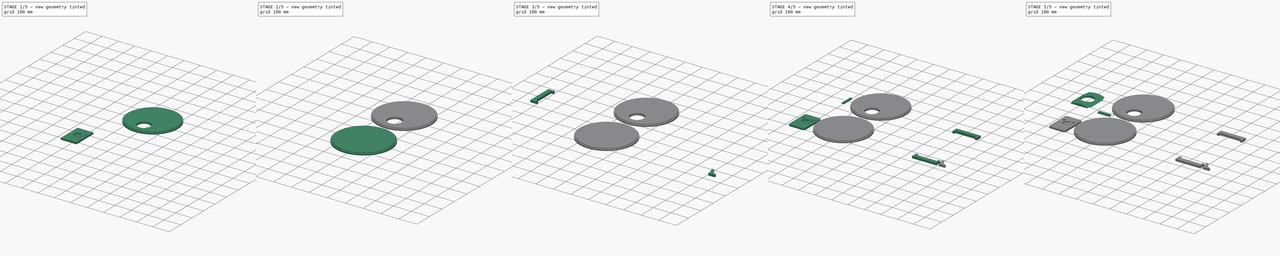
[diagram: build sequence overview — one tinted view per stage of 5, left to right]
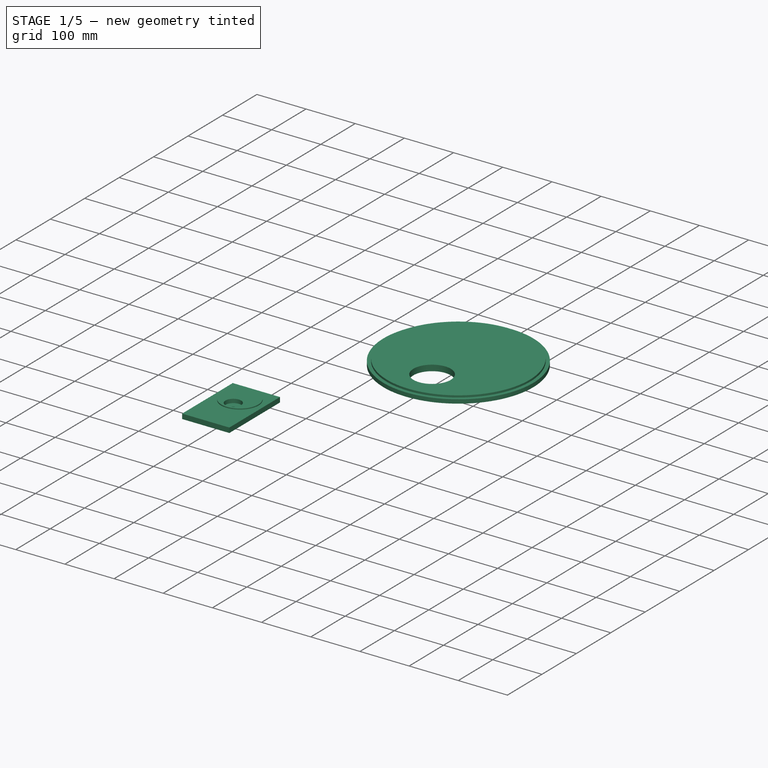
[diagram: stage 1 of 5 — iso view after this stage's code; geometry added in this stage tinted green]
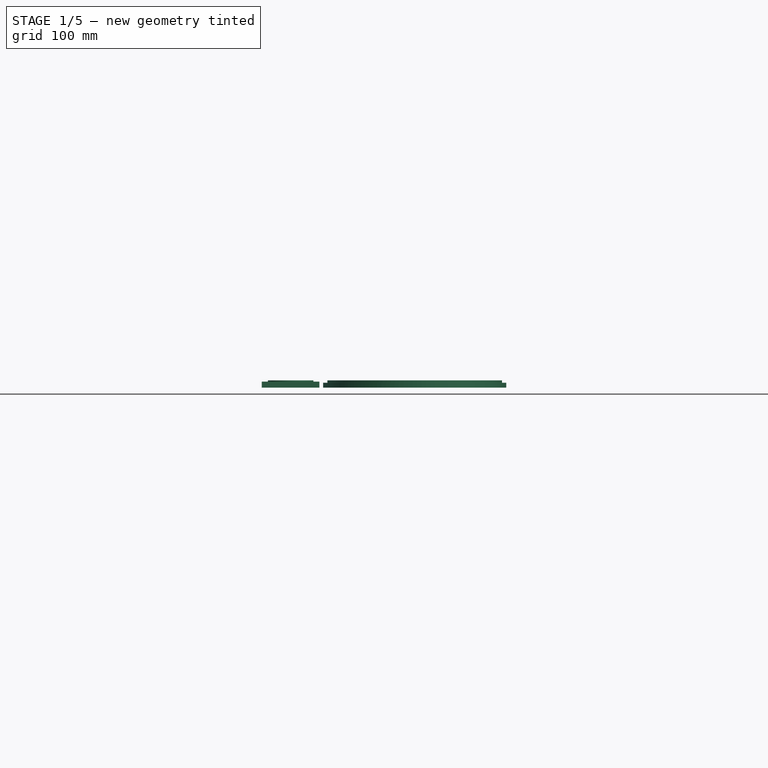
[diagram: stage 1 of 5 — front view after this stage's code; geometry added in this stage tinted green]
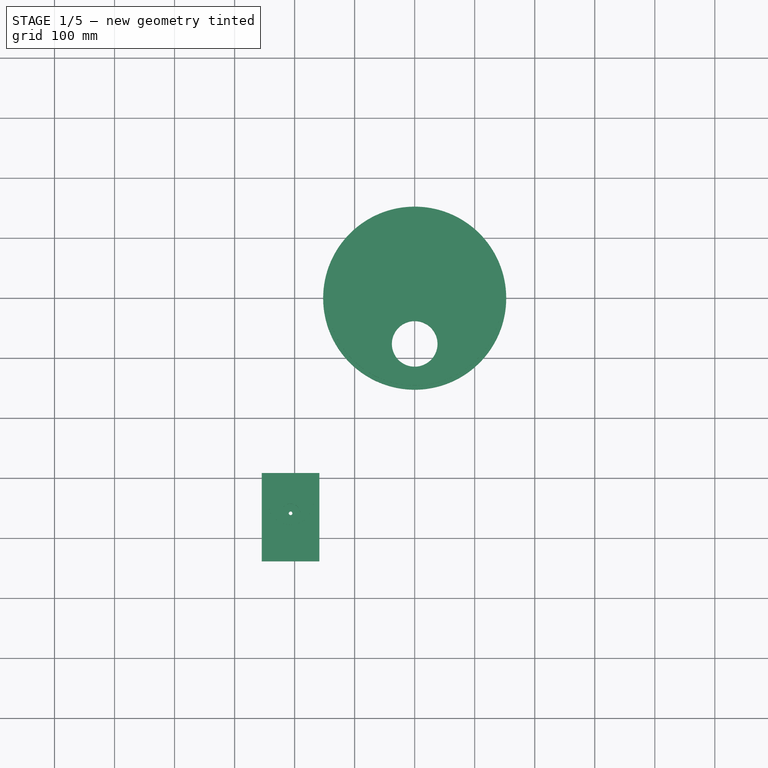
[diagram: stage 1 of 5 — top view after this stage's code; geometry added in this stage tinted green]
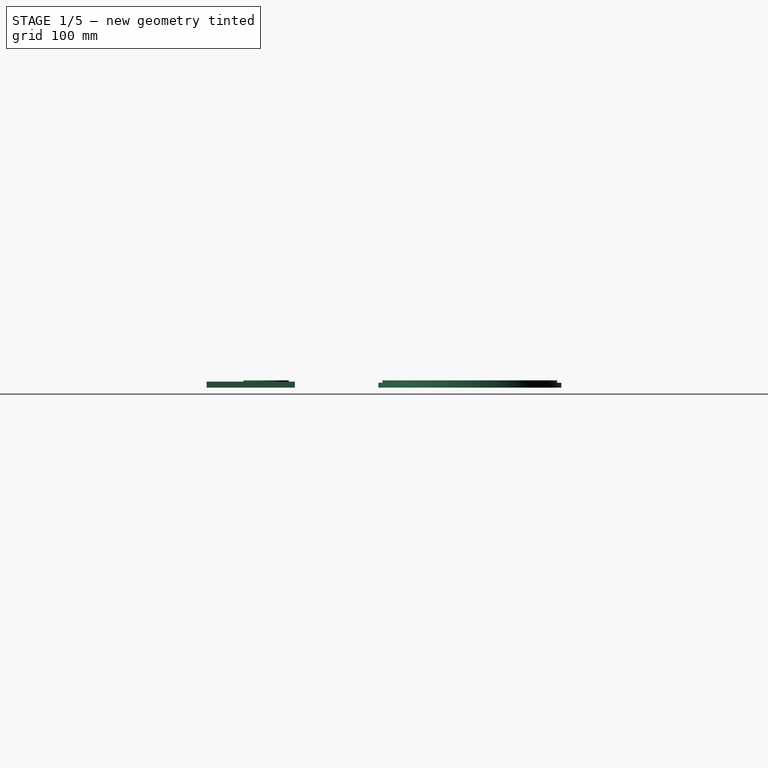
[diagram: stage 1 of 5 — right view after this stage's code; geometry added in this stage tinted green]
FCSTD DOCUMENT  (FreeCAD 0.19R24291 (Git))
Label: CNCparts
License: All rights reserved
LicenseURL: http://en.wikipedia.org/wiki/All_rights_reserved
objects: Sketcher::SketchObject×35, PartDesign::Pocket×15, PartDesign::Pad×11, PartDesign::Body×10, Part::FeaturePython×7, PartDesign::Fillet×3, PartDesign::Plane×3, PartDesign::FeatureBase×1, App::Part×1
note: 114 computed .brp shape members not serialized (recipe doc carries the construction recipe); baked Part::Feature solids carry a one-line shape summary decoded from their .brp

FEATURE [PartDesign::Body] Body002  label="Strut"
  Group = -> [Sketch008,Sketch035,Pad010,Fillet]
  Origin = -> Origin002
  Placement = pos=(14.5124,116.018,0) rot=(0,0,1;1.5708rad)
  Tip = -> Fillet
  expr: .Placement.Base.z = 0
FEATURE [PartDesign::Pad] Pad011
  Direction = (1,1,1)
  Length = 10
  Length2 = 100
  Profile = -> Sketch037
  Type = 0
FEATURE [Sketcher::SketchObject] Sketch038
  ExternalGeometry = -> [Pad011]
  FullyConstrained = true
  MapMode = 5
  Placement = pos=(0,0,10) rot=(0,0,1;0rad)
  Support = -> [Pad011]
  expr: Constraints[1] = <<master010>>.Constraints.emboss_dist
  expr: Constraints[0] = <<Sketch003>>.Constraints.amp_controls - 0.1mm
  sketch-geometry (2):
    g0: Circle CenterX=-206.728 CenterY=-339.466 CenterZ=0 NormalX=0 NormalY=0 NormalZ=1 AngleXU=0 Radius=37.9
    g1: LineSegment StartX=-206.728 StartY=-291.466 StartZ=0 EndX=-206.728 EndY=-339.466 EndZ=0
  constraints (5):
    c: Radius(g0) = 37.9
    c: DistanceY(g0,g-3) = 48
    c: Coincident(g1,g0)
    c: Vertical(g1)
    c: Symmetric(g-3,g-3,g1)
FEATURE [PartDesign::Pad] Pad012
  BaseFeature = -> Pad011
  Direction = (1,1,1)
  Length = 2
  Length2 = 100
  Profile = -> Sketch038
  Type = 0
FEATURE [Sketcher::SketchObject] Sketch039
  ExternalGeometry = -> [Pad012]
  FullyConstrained = true
  MapMode = 5
  Placement = pos=(0,0,12) rot=(0,0,1;0rad)
  Support = -> [Pad012]
  sketch-geometry (2):
    g0: Circle CenterX=-206.728 CenterY=-358.416 CenterZ=0 NormalX=0 NormalY=0 NormalZ=1 AngleXU=0 Radius=16
    g1: LineSegment StartX=-206.728 StartY=-339.466 StartZ=0 EndX=-206.728 EndY=-377.366 EndZ=0
  constraints (5):
    c: Coincident(g1,g-3)
    c: PointOnObject(g1,g-3)
    c: Vertical(g1)
    c: Symmetric(g1,g1,g0)
    c: Radius(g0) = 16  'knob_bevel'
FEATURE [PartDesign::Pocket] Pocket006
  BaseFeature = -> Pad012
  Length = 8
  Length2 = 100
  Profile = -> Sketch039
  Type = 0
FEATURE [Sketcher::SketchObject] Sketch040
  ExternalGeometry = -> [Pocket006]
  FullyConstrained = true
  MapMode = 5
  Placement = pos=(0,0,4) rot=(0,0,1;0rad)
  Support = -> [Pocket006]
  sketch-geometry (1):
    g0: Circle CenterX=-206.728 CenterY=-358.416 CenterZ=0 NormalX=0 NormalY=0 NormalZ=1 AngleXU=0 Radius=3
  constraints (2):
    c: Coincident(g0,g-3)
    c: Radius(g0) = 3
FEATURE [PartDesign::Pocket] Pocket007
  BaseFeature = -> Pocket006
  Length = 5
  Length2 = 100
  Profile = -> Sketch040
  Type = 1
FEATURE [PartDesign::Body] Body005  label="Bottom"
  Group = -> [Sketch015,Sketch025,Pad015,DatumPlane005,Sketch057,Pad016,Sketch052,Pocket018]
  Origin = -> Origin005
  Placement = pos=(155.633,123.767,0) rot=(0,0,1;0rad)
  Tip = -> Pocket018
FEATURE [Sketcher::SketchObject] Sketch058
  FullyConstrained = true
  MapMode = 5
  Support = -> [XY_Plane]
  expr: Constraints[1] = <<master>>.Constraints.Outer
  sketch-geometry (1):
    g0: Circle CenterX=0 CenterY=0 CenterZ=0 NormalX=0 NormalY=0 NormalZ=1 AngleXU=0 Radius=152.5
  constraints (2):
    c: Coincident(g0,g-1)
    c: Radius(g0) = 152.5
FEATURE [PartDesign::Pad] Pad
  Direction = (1,1,1)
  Length = 8
  Length2 = 100
  Profile = -> Sketch058
  Type = 0
FEATURE [PartDesign::Plane] DatumPlane
  Length = 365.431
  MapMode = 5
  Placement = pos=(0,0,8) rot=(0,0,1;0rad)
  ResizeMode = 0
  Support = -> [Pad]
  Width = 365.678
FEATURE [Sketcher::SketchObject] Sketch059
  ExternalGeometry = -> [Pad]
  FullyConstrained = true
  MapMode = 5
  Placement = pos=(0,0,8) rot=(0,0,1;0rad)
  Support = -> [DatumPlane]
  sketch-geometry (2):
    g0: Circle CenterX=0 CenterY=0 CenterZ=0 NormalX=0 NormalY=0 NormalZ=1 AngleXU=0 Radius=145.5
    g1: LineSegment StartX=145.5 StartY=0 StartZ=0 EndX=152.5 EndY=0 EndZ=0
  constraints (6):
    c: Coincident(g0,g-1)
    c: PointOnObject(g1,g0)
    c: Horizontal(g1)
    c: PointOnObject(g1,g-1)
    c: DistanceX(g1,g1) = 7
    c: PointOnObject(g1,g-3)
FEATURE [PartDesign::Pad] Pad017
  BaseFeature = -> Pad
  Direction = (1,1,1)
  Length = 4
  Length2 = 100
  Profile = -> Sketch059
  Type = 0
FEATURE [PartDesign::Pocket] Pocket
  BaseFeature = -> Pad017
  Length = 5
  Length2 = 100
  Profile = -> Sketch003
  Reversed = true
  Type = 1
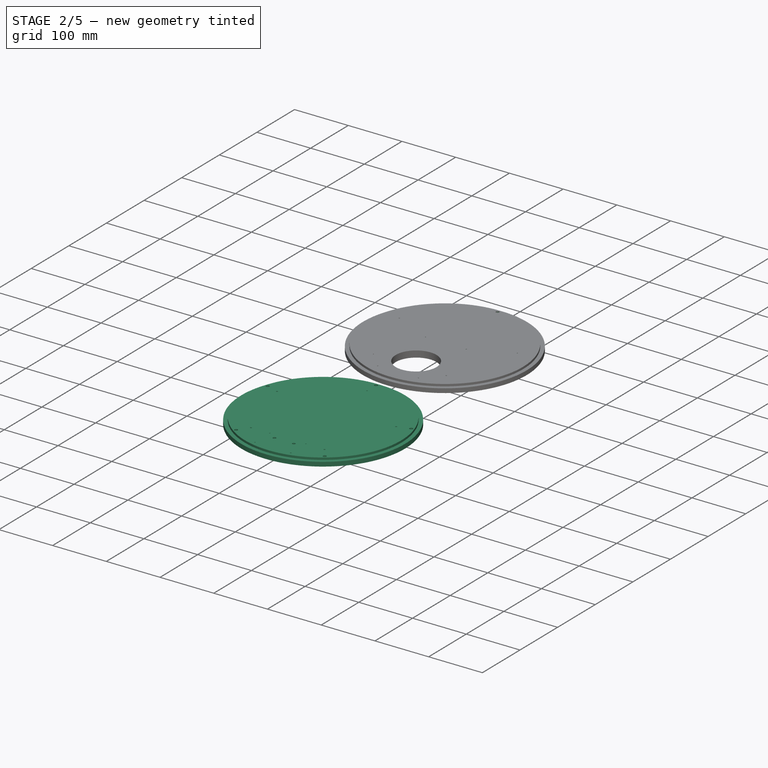
[diagram: stage 2 of 5 — iso view after this stage's code; geometry added in this stage tinted green]
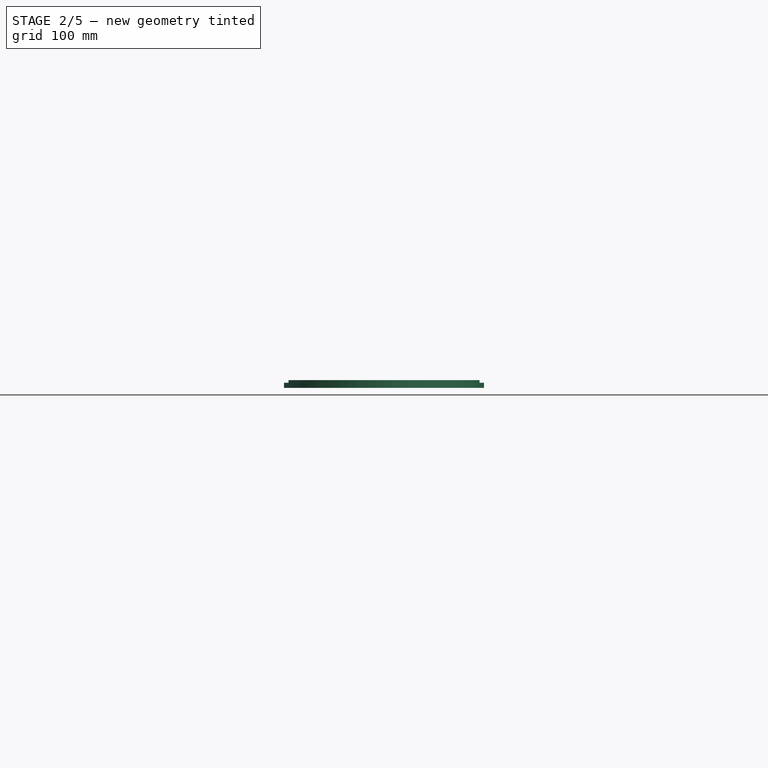
[diagram: stage 2 of 5 — front view after this stage's code; geometry added in this stage tinted green]
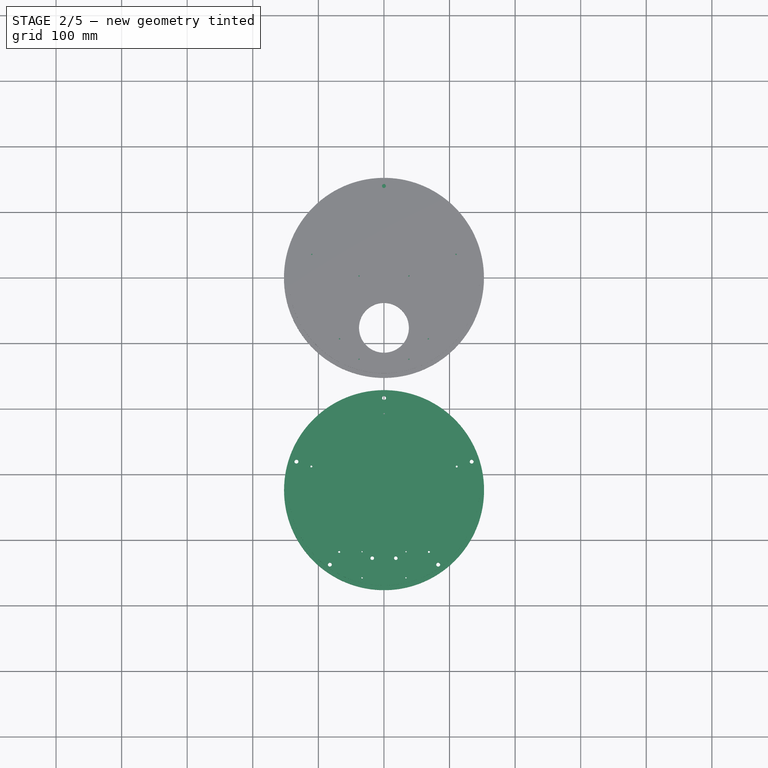
[diagram: stage 2 of 5 — top view after this stage's code; geometry added in this stage tinted green]
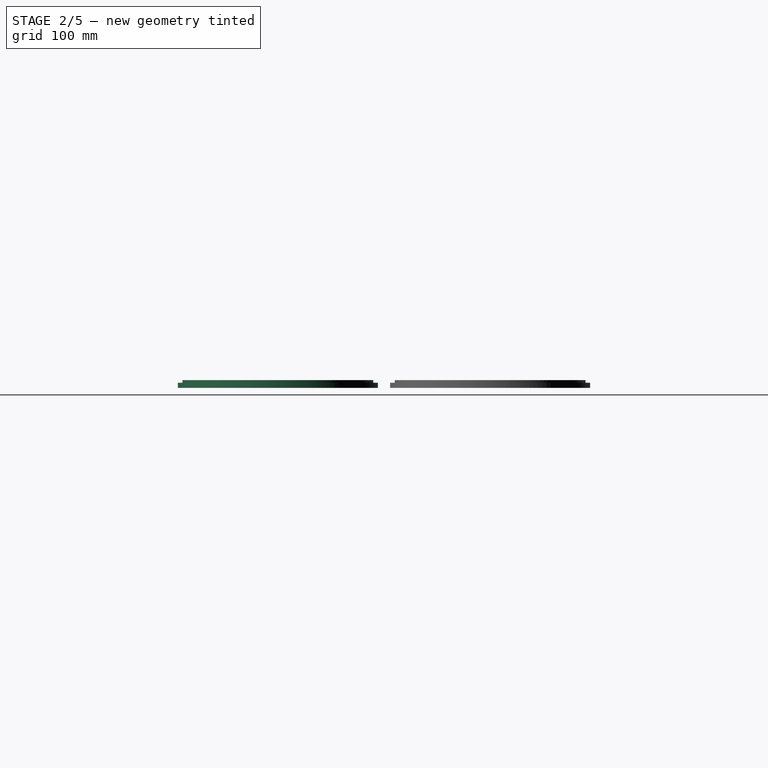
[diagram: stage 2 of 5 — right view after this stage's code; geometry added in this stage tinted green]
FEATURE [Sketcher::SketchObject] Sketch041
  ExternalGeometry = -> [Pad012]
  FullyConstrained = true
  MapMode = 5
  Placement = pos=(0,0,12) rot=(0,0,1;0rad)
  Support = -> [Pad012]
  expr: Constraints[5] = 1.5 * .Constraints.bevel_input
  sketch-geometry (2):
    g0: Circle CenterX=-231.878 CenterY=-339.466 CenterZ=0 NormalX=0 NormalY=0 NormalZ=1 AngleXU=0 Radius=8.5
    g1: LineSegment StartX=-206.728 StartY=-339.466 StartZ=0 EndX=-244.628 EndY=-339.466 EndZ=0
  constraints (6):
    c: Coincident(g1,g-3)
    c: PointOnObject(g1,g-3)
    c: Horizontal(g1)
    c: Radius(g0) = 8.5  'bevel_input'
    c: PointOnObject(g0,g1)
    c: Distance(g0,g1) = 12.75
FEATURE [PartDesign::Pocket] Pocket008
  BaseFeature = -> Pocket007
  Length = 8
  Length2 = 100
  Profile = -> Sketch041
  Type = 0
FEATURE [Sketcher::SketchObject] Sketch042
  ExternalGeometry = -> [Pocket008]
  FullyConstrained = true
  MapMode = 5
  Placement = pos=(0,0,4) rot=(0,0,1;0rad)
  Support = -> [Pocket008]
  sketch-geometry (1):
    g0: Circle CenterX=-231.878 CenterY=-339.466 CenterZ=0 NormalX=0 NormalY=0 NormalZ=1 AngleXU=0 Radius=6
  constraints (2):
    c: Coincident(g0,g-3)
    c: Radius(g0) = 6  'quarter_jack'
FEATURE [PartDesign::Pocket] Pocket009
  BaseFeature = -> Pocket008
  Length = 5
  Length2 = 100
  Profile = -> Sketch042
  Type = 1
FEATURE [Sketcher::SketchObject] Sketch043
  ExternalGeometry = -> [Pad012]
  FullyConstrained = true
  MapMode = 5
  Placement = pos=(0,0,12) rot=(0,0,1;0rad)
  Support = -> [Pad012]
  expr: Constraints[12] = .Constraints.pwr_out * 0.5
  expr: Constraints[7] = .Constraints.pwr_out * 1.5
  sketch-geometry (4):
    g0: LineSegment StartX=-206.728 StartY=-339.466 StartZ=0 EndX=-168.828 EndY=-339.466 EndZ=0
    g1: Circle CenterX=-192.828 CenterY=-339.466 CenterZ=0 NormalX=0 NormalY=0 NormalZ=1 AngleXU=0 Radius=4.5
    g2: Circle CenterX=-178.578 CenterY=-339.466 CenterZ=0 NormalX=0 NormalY=0 NormalZ=1 AngleXU=0 Radius=6.5
    g3: LineSegment StartX=-188.328 StartY=-339.466 StartZ=0 EndX=-185.078 EndY=-339.466 EndZ=0
  constraints (13):
    c: Coincident(g0,g-3)
    c: PointOnObject(g0,g-3)
    c: Horizontal(g0)
    c: PointOnObject(g2,g0)
    c: PointOnObject(g1,g0)
    c: Radius(g1) = 4.5  'eighth_input'
    c: Radius(g2) = 6.5  'pwr_out'
    c: DistanceX(g2,g0) = 9.75
    c: PointOnObject(g3,g1)
    c: PointOnObject(g3,g2)
    c: Horizontal(g3)
    c: PointOnObject(g3,g0)
    c: DistanceX(g3,g3) = 3.25
FEATURE [PartDesign::Pocket] Pocket010
  BaseFeature = -> Pocket009
  Length = 9
  Length2 = 100
  Profile = -> Sketch043
  Type = 0
FEATURE [Sketcher::SketchObject] Sketch044
  ExternalGeometry = -> [Pocket010]
  FullyConstrained = true
  MapMode = 5
  Placement = pos=(0,0,3) rot=(0,0,1;0rad)
  Support = -> [Pocket010]
  sketch-geometry (2):
    g0: Circle CenterX=-178.578 CenterY=-339.466 CenterZ=0 NormalX=0 NormalY=0 NormalZ=1 AngleXU=0 Radius=4
    g1: Circle CenterX=-192.828 CenterY=-339.466 CenterZ=0 NormalX=0 NormalY=0 NormalZ=1 AngleXU=0 Radius=3
  constraints (4):
    c: Coincident(g0,g-3)
    c: Radius(g0) = 4
    c: Coincident(g1,g-4)
    c: Radius(g1) = 3
FEATURE [PartDesign::Pocket] Pocket011
  BaseFeature = -> Pocket010
  Length = 5
  Length2 = 100
  Profile = -> Sketch044
  Type = 1
FEATURE [PartDesign::Pad] Pad015
  Direction = (1,1,1)
  Length = 8
  Length2 = 100
  Profile = -> Sketch025
  Type = 0
FEATURE [PartDesign::Plane] DatumPlane005
  Length = 384.135
  MapMode = 5
  Placement = pos=(0,0,8) rot=(0,0,1;0rad)
  ResizeMode = 0
  Support = -> [Pad015]
  Width = 592.445
FEATURE [Sketcher::SketchObject] Sketch057
  ExternalGeometry = -> [Pad015]
  FullyConstrained = true
  MapMode = 5
  Placement = pos=(0,0,8) rot=(0,0,1;0rad)
  Support = -> [DatumPlane005]
  sketch-geometry (2):
    g0: Circle CenterX=0.142028 CenterY=-323.738 CenterZ=0 NormalX=0 NormalY=0 NormalZ=1 AngleXU=0 Radius=145.5
    g1: LineSegment StartX=145.642 StartY=-323.738 StartZ=0 EndX=152.642 EndY=-323.738 EndZ=0
  constraints (6):
    c: Coincident(g0,g-3)
    c: PointOnObject(g1,g0)
    c: PointOnObject(g1,g-3)
    c: Horizontal(g1)
    c: DistanceY(g0,g1) = 0
    c: DistanceX(g1,g1) = 7  'shell_thickness'
FEATURE [PartDesign::Pad] Pad016
  BaseFeature = -> Pad015
  Direction = (1,1,1)
  Length = 4
  Length2 = 100
  Profile = -> Sketch057
  Type = 0
FEATURE [PartDesign::Pocket] Pocket018
  BaseFeature = -> Pad016
  Length = 5
  Length2 = 100
  Profile = -> Sketch052
  Type = 1
FEATURE [PartDesign::Pocket] Pocket019
  BaseFeature = -> Pocket
  Length = 6
  Length2 = 100
  Profile = -> Sketch054
  Type = 0
FEATURE [PartDesign::Body] Body  label="Top"
  Group = -> [Sketch,Sketch058,Pad,DatumPlane,Sketch059,Pad017,Sketch003,Pocket,Sketch054,Pocket019]
  Origin = -> Origin
  Placement = pos=(543.811,-199.855,0) rot=(1,0,0;0rad)
  Tip = -> Pocket019
  expr: .Placement.Rotation.Angle = 0
  expr: .Placement.Base.z = 0
FEATURE [App::Part] Part  label="Nutzen"
  Group = -> [Body016,Body,Body005,Body010,Body002,Body014,Body015,Body007,Body004,Clone,Clone006,Clone007,Clone008,Clone009,Clone010,Clone011]
  Origin = -> Origin016
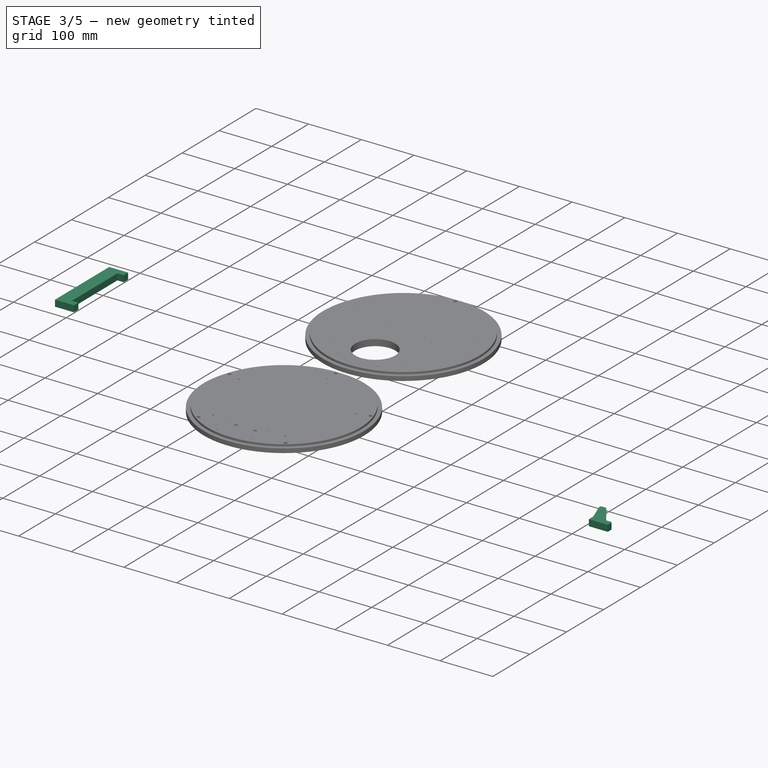
[diagram: stage 3 of 5 — iso view after this stage's code; geometry added in this stage tinted green]
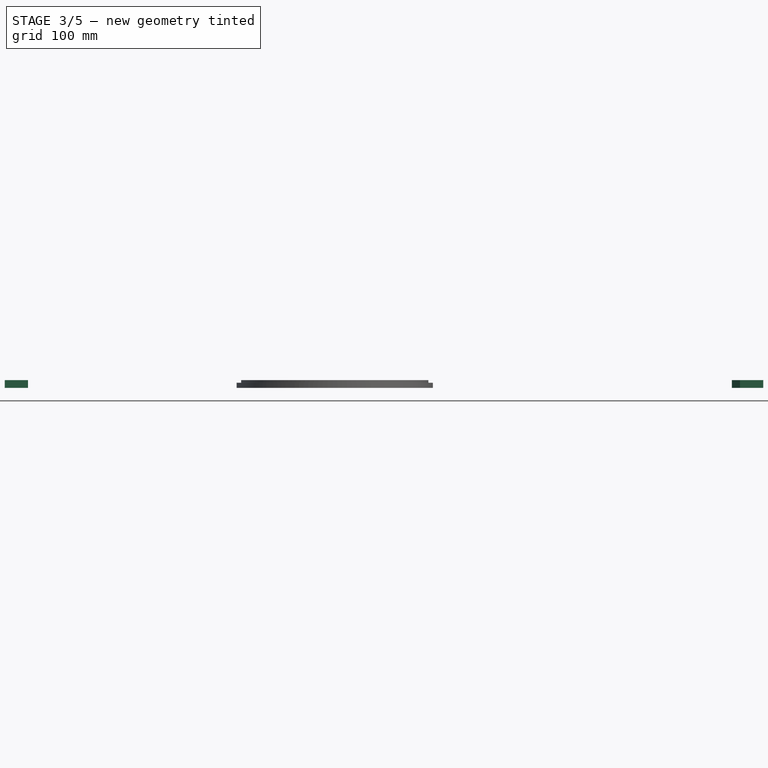
[diagram: stage 3 of 5 — front view after this stage's code; geometry added in this stage tinted green]
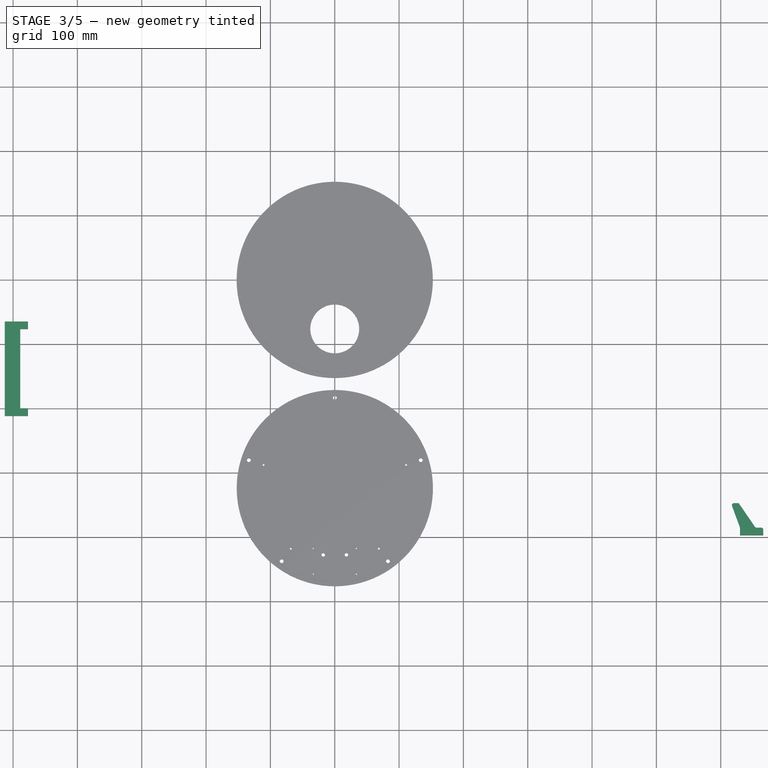
[diagram: stage 3 of 5 — top view after this stage's code; geometry added in this stage tinted green]
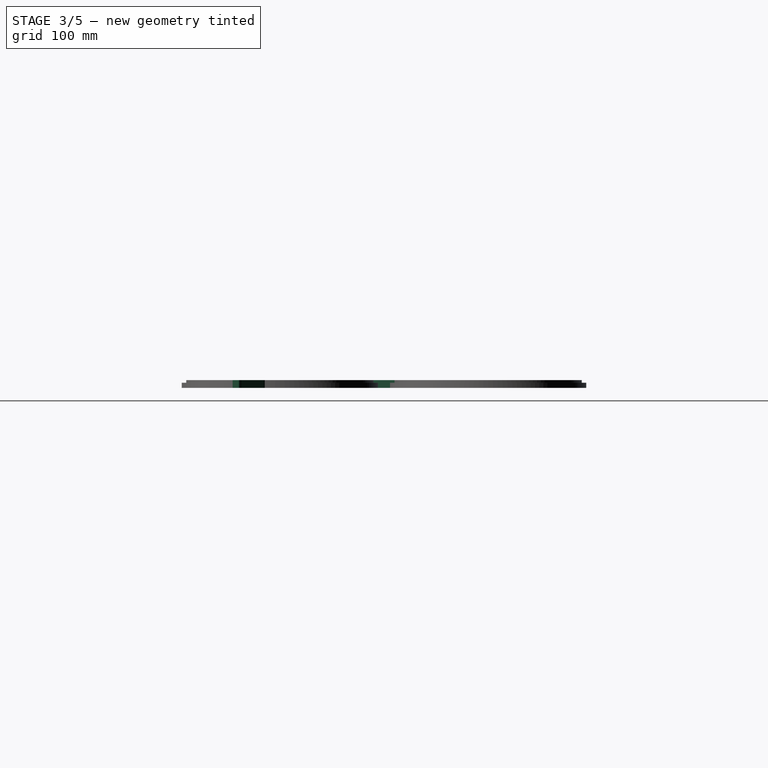
[diagram: stage 3 of 5 — right view after this stage's code; geometry added in this stage tinted green]
FEATURE [Sketcher::SketchObject] Sketch  label="master"
  FullyConstrained = false
  MapMode = 5
  Support = -> [XY_Plane]
  expr: Constraints[32] = .Constraints.Outer / 2
  expr: .Constraints.rad_inner = .Constraints.Outer - 7mm
  sketch-geometry (12):
    g0: Circle CenterX=0 CenterY=0 CenterZ=0 NormalX=0 NormalY=0 NormalZ=1 AngleXU=0 Radius=152.5
    g1: Circle CenterX=0 CenterY=0 CenterZ=0 NormalX=0 NormalY=0 NormalZ=1 AngleXU=0 Radius=145.5
    g2: Circle CenterX=0 CenterY=-76.25 CenterZ=0 NormalX=0 NormalY=0 NormalZ=1 AngleXU=0 Radius=38
    g3: LineSegment StartX=-192.143 StartY=8 StartZ=0 EndX=-497.143 EndY=8 EndZ=0
    g4: LineSegment StartX=-497.143 StartY=8 StartZ=0 EndX=-497.143 EndY=0 EndZ=0
    g5: LineSegment StartX=-497.143 StartY=0 StartZ=0 EndX=-192.143 EndY=0 EndZ=0
    g6: LineSegment StartX=-192.143 StartY=0 StartZ=0 EndX=-192.143 EndY=8 EndZ=0
    g7: LineSegment StartX=-491.143 StartY=12 StartZ=0 EndX=-198.143 EndY=12 EndZ=0
    g8: LineSegment StartX=-198.143 StartY=12 StartZ=0 EndX=-198.143 EndY=0 EndZ=0
    g9: LineSegment StartX=-198.143 StartY=0 StartZ=0 EndX=-491.143 EndY=0 EndZ=0
    g10: LineSegment StartX=-491.143 StartY=0 StartZ=0 EndX=-491.143 EndY=12 EndZ=0
    g11: LineSegment StartX=0 StartY=-152.5 StartZ=0 EndX=0 EndY=0 EndZ=0
  constraints (33):
    c: Radius(g0) = 152.5  'Outer'
    c: Coincident(g1,g0)
    c: Radius(g1) = 145.5  'rad_inner'
    c: Radius(g2) = 38  'Cutout'
    c: Coincident(g3,g4)
    c: Coincident(g4,g5)
    c: Coincident(g5,g6)
    c: Coincident(g6,g3)
    c: Horizontal(g3)
    c: Horizontal(g5)
    c: Vertical(g4)
    c: Vertical(g6)
    c: Coincident(g7,g8)
    c: Coincident(g8,g9)
    c: Coincident(g9,g10)
    c: Coincident(g10,g7)
    c: Horizontal(g7)
    c: Horizontal(g9)
    c: Vertical(g8)
    c: Vertical(g10)
    c: PointOnObject(g8,g5)
    c: DistanceY(g5,g-1) = 0
    c: DistanceX(g4,g5) = 305
    c: DistanceY(g4,g3) = 8  'bevel'
    c: DistanceY(g9,g7) = 12  'thickness'
    c: DistanceX(g9,g8) = 293
    c: DistanceX(g8,g5) = 6
    c: Coincident(g0,g-1)
    c: Coincident(g11,g0)
    c: PointOnObject(g2,g11)
    c: PointOnObject(g11,g0)
    c: Vertical(g11)
    c: DistanceY(g2,g0) = 76.25
FEATURE [Sketcher::SketchObject] Sketch003
  ExternalGeometry = -> [Sketch]
  FullyConstrained = true
  MapMode = 5
  Support = -> [XY_Plane]
  expr: .Constraints.amp_controls = <<master>>.Constraints.Cutout
  sketch-geometry (1):
    g0: Circle CenterX=0 CenterY=-76.25 CenterZ=0 NormalX=0 NormalY=0 NormalZ=1 AngleXU=0 Radius=38
  constraints (2):
    c: Coincident(g0,g-3)
    c: Radius(g0) = 38  'amp_controls'
FEATURE [Sketcher::SketchObject] Sketch008  label="master002"
  FullyConstrained = false
  MapMode = 5
  Support = -> [XY_Plane002]
  expr: .Constraints.strut_width = 3 * Sketch.Constraints.thickness
  expr: Constraints[19] = Sketch.Constraints.thickness
  expr: Constraints[17] = 2 * Sketch.Constraints.thickness
  sketch-geometry (8):
    g0: LineSegment StartX=-512.875 StartY=-211.742 StartZ=0 EndX=-512.875 EndY=-64.7416 EndZ=0
    g1: LineSegment StartX=-476.875 StartY=-64.7416 StartZ=0 EndX=-476.875 EndY=-76.7416 EndZ=0
    g2: LineSegment StartX=-476.875 StartY=-76.7416 StartZ=0 EndX=-488.875 EndY=-76.7416 EndZ=0
    g3: LineSegment StartX=-476.875 StartY=-211.742 StartZ=0 EndX=-476.875 EndY=-199.742 EndZ=0
    g4: LineSegment StartX=-476.875 StartY=-199.742 StartZ=0 EndX=-488.875 EndY=-199.742 EndZ=0
    g5: LineSegment StartX=-488.875 StartY=-76.7416 StartZ=0 EndX=-488.875 EndY=-199.742 EndZ=0
    g6: LineSegment StartX=-512.875 StartY=-64.7416 StartZ=0 EndX=-476.875 EndY=-64.7416 EndZ=0
    g7: LineSegment StartX=-512.875 StartY=-211.742 StartZ=0 EndX=-476.875 EndY=-211.742 EndZ=0
  constraints (22):
    c: Vertical(g0)
    c: DistanceY(g0,g0) = 147  'strut_height'
    c: Coincident(g1,g2)
    c: Horizontal(g2)
    c: Vertical(g1)
    c: Coincident(g3,g4)
    c: Horizontal(g4)
    c: Vertical(g3)
    c: Coincident(g5,g2)
    c: Coincident(g5,g4)
    c: Vertical(g5)
    c: Coincident(g6,g0)
    c: Coincident(g6,g1)
    c: Horizontal(g6)
    c: Coincident(g7,g0)
    c: Coincident(g7,g3)
    c: Horizontal(g7)
    c: DistanceX(g0,g2) = 24
    c: Equal(g2,g4)
    c: DistanceY(g1,g1) = 12
    c: Equal(g1,g3)
    c: DistanceX(g0,g1) = 36  'strut_width'
FEATURE [Sketcher::SketchObject] Sketch014  label="master005"
  FullyConstrained = false
  MapMode = 5
  Support = -> [XY_Plane007]
  expr: Constraints[12] = Sketch008.Constraints.strut_width
  expr: .Constraints.stand_width = .Constraints.stand_height
  expr: Constraints[17] = Sketch.Constraints.thickness
  expr: Constraints[15] = Sketch.Constraints.thickness
  expr: Constraints[18] = Sketch.Constraints.thickness
  sketch-geometry (7):
    g0: LineSegment StartX=-439.73 StartY=-74.5288 StartZ=0 EndX=-439.73 EndY=-86.5288 EndZ=0
    g1: LineSegment StartX=-439.73 StartY=-86.5288 StartZ=0 EndX=-475.73 EndY=-86.5288 EndZ=0
    g2: LineSegment StartX=-475.73 StartY=-86.5288 StartZ=0 EndX=-475.73 EndY=-74.5288 EndZ=0
    g3: LineSegment StartX=-475.73 StartY=-74.5288 StartZ=0 EndX=-489.73 EndY=-36.5288 EndZ=0
    g4: LineSegment StartX=-489.73 StartY=-36.5288 StartZ=0 EndX=-477.73 EndY=-36.5288 EndZ=0
    g5: LineSegment StartX=-477.73 StartY=-36.5288 StartZ=0 EndX=-451.73 EndY=-74.5288 EndZ=0
    g6: LineSegment StartX=-451.73 StartY=-74.5288 StartZ=0 EndX=-439.73 EndY=-74.5288 EndZ=0
  constraints (19):
    c: Coincident(g0,g1)
    c: Coincident(g1,g2)
    c: Horizontal(g1)
    c: Vertical(g0)
    c: Vertical(g2)
    c: Coincident(g3,g2)
    c: Coincident(g4,g3)
    c: Horizontal(g4)
    c: Coincident(g5,g4)
    c: Coincident(g6,g0)
    c: Parallel(g6,g1)
    c: Coincident(g5,g6)
    c: DistanceX(g1,g1) = 36
    c: DistanceY(g1,g3) = 50  'stand_height'
    c: DistanceX(g3,g0) = 50  'stand_width'
    c: DistanceX(g3,g4) = 12
    c: Equal(g2,g0)
    c: DistanceY(g0,g0) = 12
    c: DistanceX(g5,g0) = 12
FEATURE [Sketcher::SketchObject] Sketch024
  ExternalGeometry = -> [Sketch014]
  FullyConstrained = true
  MapMode = 5
  Support = -> [XY_Plane007]
  expr: Constraints[14] = Sketch.Constraints.thickness
  expr: Constraints[15] = Sketch.Constraints.thickness
  expr: Constraints[16] = Sketch.Constraints.thickness
  expr: Constraints[18] = Sketch008.Constraints.strut_width
  sketch-geometry (7):
    g0: LineSegment StartX=-477.73 StartY=-36.5288 StartZ=0 EndX=-451.73 EndY=-74.5288 EndZ=0
    g1: LineSegment StartX=-451.73 StartY=-74.5288 StartZ=0 EndX=-439.73 EndY=-74.5288 EndZ=0
    g2: LineSegment StartX=-439.73 StartY=-74.5288 StartZ=0 EndX=-439.73 EndY=-86.5288 EndZ=0
    g3: LineSegment StartX=-439.73 StartY=-86.5288 StartZ=0 EndX=-475.73 EndY=-86.5288 EndZ=0
    g4: LineSegment StartX=-475.73 StartY=-86.5288 StartZ=0 EndX=-475.73 EndY=-74.5288 EndZ=0
    g5: LineSegment StartX=-475.73 StartY=-74.5288 StartZ=0 EndX=-489.73 EndY=-36.5288 EndZ=0
    g6: LineSegment StartX=-489.73 StartY=-36.5288 StartZ=0 EndX=-477.73 EndY=-36.5288 EndZ=0
  constraints (19):
    c: Coincident(g0,g-3)
    c: Coincident(g0,g-3)
    c: Coincident(g1,g0)
    c: Coincident(g3,g2)
    c: Coincident(g6,g0)
    c: Perpendicular(g2,g1)
    c: Coincident(g2,g1)
    c: Perpendicular(g2,g3)
    c: Coincident(g3,g4)
    c: Perpendicular(g3,g4)
    c: Coincident(g5,g4)
    c: Parallel(g6,g3)
    c: Coincident(g5,g6)
    c: Horizontal(g3)
    c: DistanceX(g5,g0) = 12
    c: DistanceX(g0,g1) = 12
    c: DistanceY(g3,g4) = 12
    c: Equal(g2,g4)
    c: DistanceX(g3,g2) = 36
FEATURE [PartDesign::Pad] Pad005
  Direction = (1,1,1)
  Length = 12
  Length2 = 100
  Profile = -> Sketch024
  Type = 0
  expr: Length = Sketch.Constraints.thickness
FEATURE [PartDesign::Fillet] Fillet003
  Base = -> Pad005 [Edge5,Edge2,Edge1,Edge17,Edge14]
  BaseFeature = -> Pad005
  Radius = 3
  SupportTransform = false
FEATURE [Sketcher::SketchObject] Sketch035
  ExternalGeometry = -> [Sketch008]
  FullyConstrained = true
  MapMode = 5
  Support = -> [XY_Plane002]
  expr: Constraints[19] = 2 * Sketch.Constraints.thickness
  expr: Constraints[18] = 3 * Sketch.Constraints.thickness
  expr: Constraints[15] = Sketch.Constraints.thickness
  sketch-geometry (8):
    g0: LineSegment StartX=-512.875 StartY=-64.7416 StartZ=0 EndX=-512.875 EndY=-211.742 EndZ=0
    g1: LineSegment StartX=-512.875 StartY=-211.742 StartZ=0 EndX=-476.875 EndY=-211.742 EndZ=0
    g2: LineSegment StartX=-476.875 StartY=-211.742 StartZ=0 EndX=-476.875 EndY=-199.742 EndZ=0
    g3: LineSegment StartX=-476.875 StartY=-199.742 StartZ=0 EndX=-488.875 EndY=-199.742 EndZ=0
    g4: LineSegment StartX=-488.875 StartY=-199.742 StartZ=0 EndX=-488.875 EndY=-76.7416 EndZ=0
    g5: LineSegment StartX=-488.875 StartY=-76.7416 StartZ=0 EndX=-476.875 EndY=-76.7416 EndZ=0
    g6: LineSegment StartX=-476.875 StartY=-76.7416 StartZ=0 EndX=-476.875 EndY=-64.7416 EndZ=0
    g7: LineSegment StartX=-476.875 StartY=-64.7416 StartZ=0 EndX=-512.875 EndY=-64.7416 EndZ=0
  constraints (22):
    c: Coincident(g0,g-3)
    c: Coincident(g0,g-3)
    c: Horizontal(g1)
    c: Vertical(g2)
    c: Horizontal(g3)
    c: Coincident(g4,g3)
    c: Vertical(g4)
    c: Coincident(g7,g6)
    c: Coincident(g7,g0)
    c: Perpendicular(g0,g7)
    c: Parallel(g5,g7)
    c: Coincident(g5,g4)
    c: Parallel(g6,g0)
    c: Coincident(g2,g3)
    c: Coincident(g2,g1)
    c: DistanceY(g1,g2) = 12
    c: Coincident(g1,g0)
    c: Coincident(g5,g6)
    c: DistanceX(g0,g1) = 36
    c: DistanceX(g0,g3) = 24
    c: Equal(g6,g2)
    c: Equal(g1,g7)
FEATURE [PartDesign::Pad] Pad010
  Direction = (1,1,1)
  Length = 12
  Length2 = 100
  Profile = -> Sketch035
  Type = 0
  expr: Length = Sketch.Constraints.thickness
FEATURE [Part::FeaturePython] Clone008  label="Stand001"  # Draft clone (typed FeaturePython)
  AttacherType = Attacher::AttachEngine3D
  Fuse = false
  Objects = -> [Body004]
  Placement = pos=(1105.76,-310.683,0) rot=(0,0,1;0rad)
  Scale = (1,1,1)
FEATURE [Part::FeaturePython] Clone009  label="Stand002"  # Draft clone (typed FeaturePython)
  AttacherType = Attacher::AttachEngine3D
  Fuse = false
  Objects = -> [Body004]
  Placement = pos=(510.621,-310.126,0) rot=(0,0,1;0rad)
  Scale = (1,1,1)
FEATURE [Part::FeaturePython] Clone010  label="Stand003"  # Draft clone (typed FeaturePython)
  AttacherType = Attacher::AttachEngine3D
  Fuse = false
  Objects = -> [Body004]
  Placement = pos=(-27.3596,-411.056,0) rot=(0,0,1;3.14159rad)
  Scale = (1,1,1)
FEATURE [Part::FeaturePython] Clone011  label="Stand004"  # Draft clone (typed FeaturePython)
  AttacherType = Attacher::AttachEngine3D
  Fuse = false
  Objects = -> [Clone010]
  Placement = pos=(-419.316,-411.056,0) rot=(0,0,1;3.14159rad)
  Scale = (1,1,1)
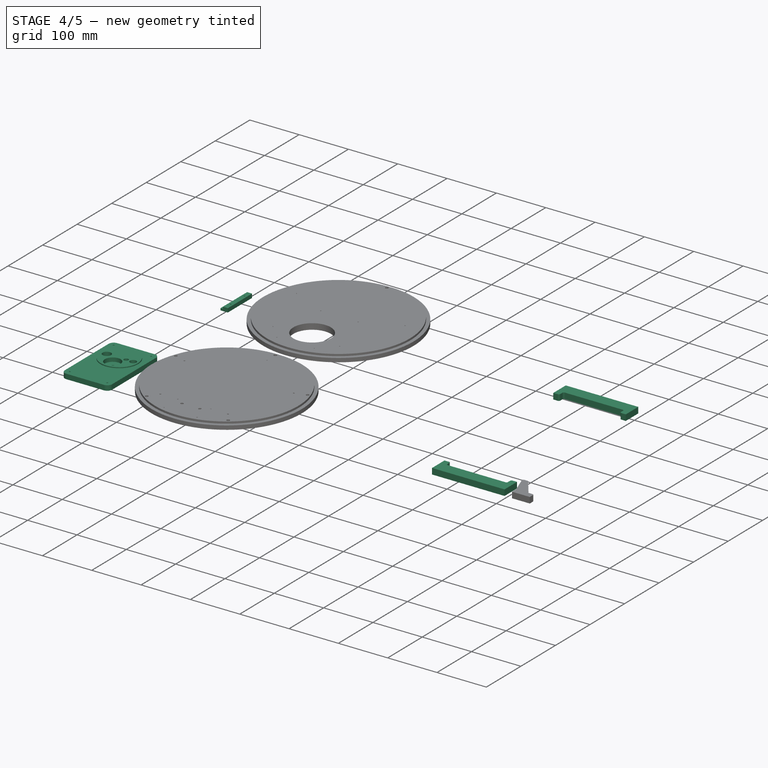
[diagram: stage 4 of 5 — iso view after this stage's code; geometry added in this stage tinted green]
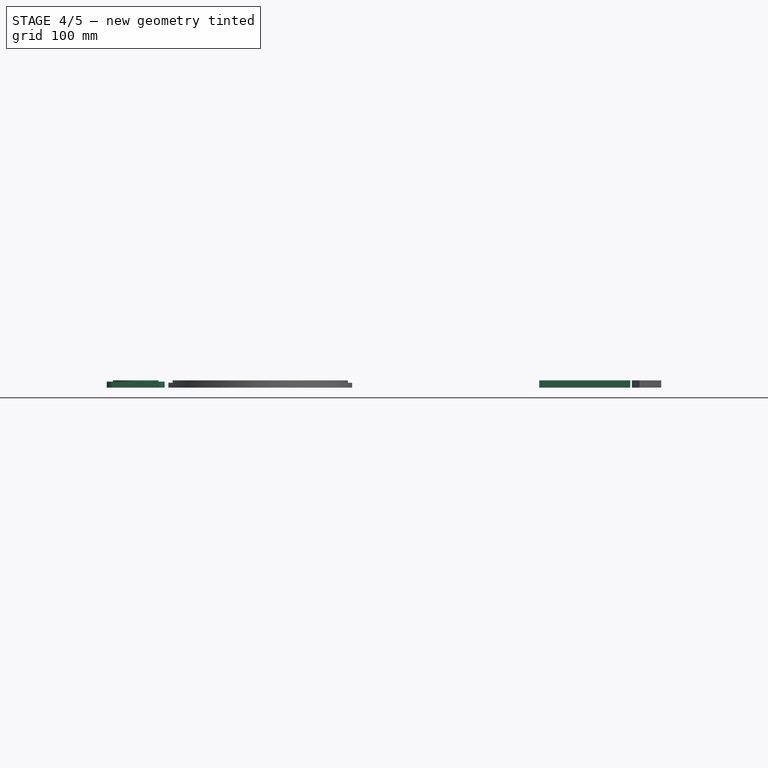
[diagram: stage 4 of 5 — front view after this stage's code; geometry added in this stage tinted green]
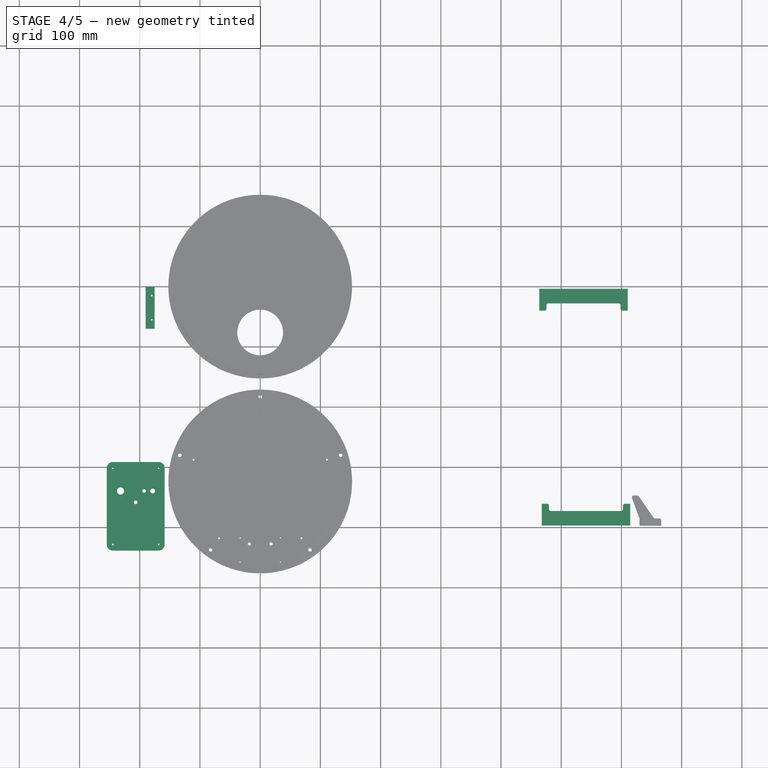
[diagram: stage 4 of 5 — top view after this stage's code; geometry added in this stage tinted green]
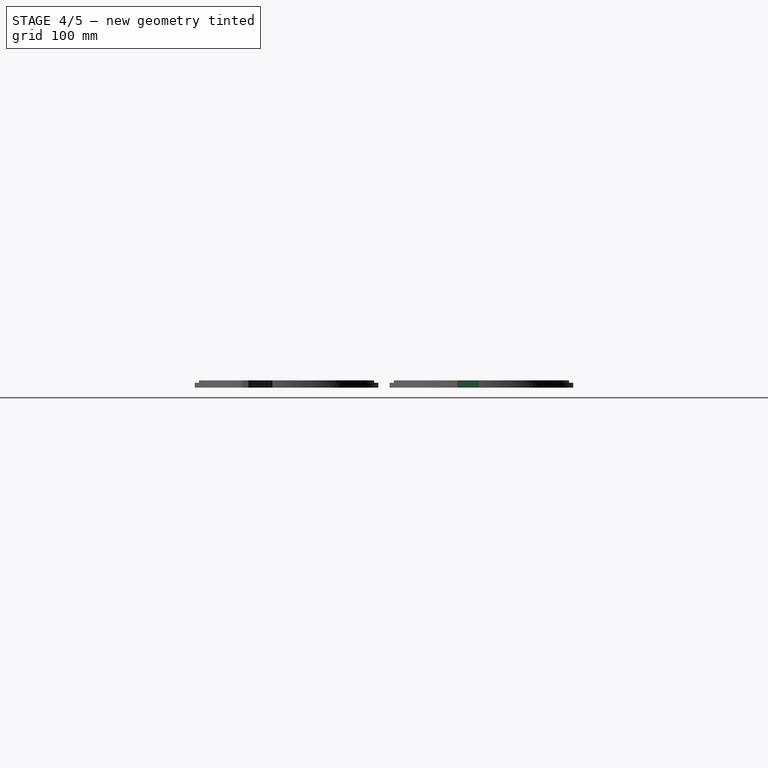
[diagram: stage 4 of 5 — right view after this stage's code; geometry added in this stage tinted green]
FEATURE [Sketcher::SketchObject] Sketch036  label="master010"
  FullyConstrained = false
  MapMode = 5
  Support = -> [XY_Plane015]
  expr: .Constraints.width = <<master002>>.Constraints.strut_height
  expr: .Constraints.emboss_dist = <<master>>.Constraints.Cutout + 10mm
  expr: Constraints[10] = <<Sketch003>>.Constraints.amp_controls - 0.1mm
  expr: .Constraints.length = 20mm + 2 * <<Sketch003>>.Constraints.amp_controls
  sketch-geometry (6):
    g0: LineSegment StartX=-254.728 StartY=-291.466 StartZ=0 EndX=-158.728 EndY=-291.466 EndZ=0
    g1: LineSegment StartX=-158.728 StartY=-291.466 StartZ=0 EndX=-158.728 EndY=-438.466 EndZ=0
    g2: LineSegment StartX=-158.728 StartY=-438.466 StartZ=0 EndX=-254.728 EndY=-438.466 EndZ=0
    g3: LineSegment StartX=-254.728 StartY=-438.466 StartZ=0 EndX=-254.728 EndY=-291.466 EndZ=0
    g4: Circle CenterX=-206.728 CenterY=-339.466 CenterZ=0 NormalX=0 NormalY=0 NormalZ=1 AngleXU=0 Radius=37.9
    g5: LineSegment StartX=-206.728 StartY=-291.466 StartZ=0 EndX=-206.728 EndY=-438.466 EndZ=0
  constraints (16):
    c: Coincident(g0,g1)
    c: Coincident(g1,g2)
    c: Coincident(g2,g3)
    c: Coincident(g3,g0)
    c: Horizontal(g0)
    c: Horizontal(g2)
    c: Vertical(g1)
    c: Vertical(g3)
    c: DistanceX(g0,g0) = 96  'length'
    c: DistanceY(g2,g0) = 147  'width'
    c: Radius(g4) = 37.9
    c: PointOnObject(g5,g2)
    c: Vertical(g5)
    c: Symmetric(g0,g0,g5)
    c: PointOnObject(g4,g5)
    c: DistanceY(g4,g0) = 48  'emboss_dist'
FEATURE [Sketcher::SketchObject] Sketch037
  ExternalGeometry = -> [Sketch036]
  FullyConstrained = true
  MapMode = 5
  Support = -> [XY_Plane015]
  expr: Constraints[9] = <<master002>>.Constraints.strut_height
  sketch-geometry (4):
    g0: LineSegment StartX=-158.728 StartY=-438.466 StartZ=0 EndX=-254.728 EndY=-438.466 EndZ=0
    g1: LineSegment StartX=-254.728 StartY=-438.466 StartZ=0 EndX=-254.728 EndY=-291.466 EndZ=0
    g2: LineSegment StartX=-254.728 StartY=-291.466 StartZ=0 EndX=-158.728 EndY=-291.466 EndZ=0
    g3: LineSegment StartX=-158.728 StartY=-291.466 StartZ=0 EndX=-158.728 EndY=-438.466 EndZ=0
  constraints (10):
    c: Coincident(g0,g1)
    c: Coincident(g1,g2)
    c: Coincident(g2,g3)
    c: Coincident(g3,g0)
    c: Horizontal(g2)
    c: Vertical(g1)
    c: Vertical(g3)
    c: Coincident(g0,g-3)
    c: Coincident(g0,g-3)
    c: DistanceY(g0,g1) = 147
FEATURE [PartDesign::Fillet] Fillet
  Base = -> Pad010 [Edge8,Edge11,Edge17,Edge14]
  BaseFeature = -> Pad010
  Radius = 3
  SupportTransform = false
FEATURE [Sketcher::SketchObject] Sketch045
  FullyConstrained = false
  MapMode = 5
  Placement = pos=(0,0,0) rot=(1,0,0;1.5708rad)
  Support = -> [XZ_Plane014]
  expr: Constraints[14] = 8
  sketch-geometry (6):
    g0: LineSegment StartX=-175.241 StartY=0 StartZ=0 EndX=-190.241 EndY=0 EndZ=0
    g1: LineSegment StartX=-175.241 StartY=0 StartZ=0 EndX=-175.241 EndY=8 EndZ=0
    g2: LineSegment StartX=-185.241 StartY=8 StartZ=0 EndX=-185.241 EndY=4 EndZ=0
    g3: LineSegment StartX=-190.241 StartY=4 StartZ=0 EndX=-190.241 EndY=0 EndZ=0
    g4: LineSegment StartX=-190.241 StartY=4 StartZ=0 EndX=-185.241 EndY=4 EndZ=0
    g5: LineSegment StartX=-185.241 StartY=8 StartZ=0 EndX=-175.241 EndY=8 EndZ=0
  constraints (17):
    c: Horizontal(g0)
    c: Coincident(g1,g0)
    c: Vertical(g1)
    c: Vertical(g2)
    c: Coincident(g3,g0)
    c: Coincident(g4,g3)
    c: Coincident(g4,g2)
    c: Coincident(g5,g2)
    c: Coincident(g5,g1)
    c: Horizontal(g5)
    c: Horizontal(g4)
    c: Vertical(g3)
    c: DistanceX(g0,g0) = 15
    c: DistanceX(g3,g2) = 5
    c: DistanceY(g0,g1) = 8
    c: DistanceY(g3,g3) = 4
    c: PointOnObject(g0,g-1)
FEATURE [PartDesign::Pad] Pad013
  Direction = (1,1,1)
  Length = 70
  Length2 = 100
  Placement = pos=(0,0,0) rot=(1,0,0;1.5708rad)
  Profile = -> Sketch045
  Type = 0
FEATURE [Sketcher::SketchObject] Sketch048  label="predrill"
  ExternalGeometry = -> [Pocket011]
  FullyConstrained = false
  MapMode = 5
  Placement = pos=(0,0,10) rot=(0,0,1;0rad)
  Support = -> [Pocket011]
  expr: Constraints[12] = .Constraints.hole_dist
  expr: Constraints[16] = .Constraints.drill_rad
  expr: Constraints[18] = .Constraints.drill_rad
  expr: Constraints[17] = .Constraints.drill_rad
  expr: Constraints[14] = .Constraints.hole_dist
  expr: Constraints[15] = .Constraints.hole_dist
  expr: Constraints[19] = .Constraints.drill_rad
  sketch-geometry (10):
    g0: Circle CenterX=-244.728 CenterY=-301.466 CenterZ=0 NormalX=0 NormalY=0 NormalZ=1 AngleXU=0 Radius=1.5
    g1: Circle CenterX=-168.728 CenterY=-301.466 CenterZ=0 NormalX=0 NormalY=0 NormalZ=1 AngleXU=0 Radius=1.5
    g2: Circle CenterX=-168.728 CenterY=-428.466 CenterZ=0 NormalX=0 NormalY=0 NormalZ=1 AngleXU=0 Radius=1.5
    g3: Circle CenterX=-244.728 CenterY=-428.466 CenterZ=0 NormalX=0 NormalY=0 NormalZ=1 AngleXU=0 Radius=1.5
    g4: LineSegment StartX=-158.728 StartY=-301.466 StartZ=0 EndX=-254.728 EndY=-301.466 EndZ=0
    g5: LineSegment StartX=-254.728 StartY=-428.466 StartZ=0 EndX=-158.728 EndY=-428.466 EndZ=0
    g6: LineSegment StartX=-168.728 StartY=-291.466 StartZ=0 EndX=-168.728 EndY=-438.466 EndZ=0
    g7: LineSegment StartX=-244.728 StartY=-291.466 StartZ=0 EndX=-244.728 EndY=-438.466 EndZ=0
    g8: Circle CenterX=-214.611 CenterY=-276.454 CenterZ=0 NormalX=0 NormalY=0 NormalZ=1 AngleXU=0 Radius=1
    g9: Circle CenterX=-201.838 CenterY=-276.123 CenterZ=0 NormalX=0 NormalY=0 NormalZ=1 AngleXU=0 Radius=1.5
  constraints (30):
    c: PointOnObject(g4,g-6)
    c: PointOnObject(g4,g-4)
    c: Horizontal(g4)
    c: PointOnObject(g5,g-4)
    c: PointOnObject(g5,g-6)
    c: Horizontal(g5)
    c: PointOnObject(g6,g-5)
    c: PointOnObject(g6,g-3)
    c: Vertical(g6)
    c: PointOnObject(g7,g-5)
    c: PointOnObject(g7,g-3)
    c: Vertical(g7)
    c: DistanceX(g-5,g7) = 10
    c: DistanceX(g6,g4) = 10  'hole_dist'
    c: DistanceY(g4,g-5) = 10
    c: DistanceY(g-4,g5) = 10
    c: Radius(g2) = 1.5
    c: Radius(g3) = 1.5
    c: Radius(g0) = 1.5
    c: Radius(g1) = 1.5
    c: PointOnObject(g0,g7)
    c: PointOnObject(g0,g4)
    c: PointOnObject(g1,g6)
    c: PointOnObject(g1,g4)
    c: PointOnObject(g3,g5)
    c: PointOnObject(g3,g7)
    c: PointOnObject(g2,g5)
    c: PointOnObject(g2,g6)
    c: Radius(g8) = 1  'predrill_rad'
    c: Radius(g9) = 1.5  'drill_rad'
FEATURE [PartDesign::Pocket] Pocket012
  BaseFeature = -> Pocket011
  Length = 5
  Length2 = 100
  Profile = -> Sketch048
  Type = 1
FEATURE [PartDesign::Body] Body007  label="Sub"
  Group = -> [Sketch033,Sketch032,Sketch034,Pad009,Pocket005,Sketch050,Pocket014]
  Origin = -> Origin007
  Placement = pos=(629.955,-252.21,0) rot=(0,0,1;0rad)
  Tip = -> Pocket014
FEATURE [Sketcher::SketchObject] Sketch051
  ExternalGeometry = -> [Pad013]
  FullyConstrained = true
  MapMode = 5
  Placement = pos=(0,1.8e-15,8) rot=(0,0,1;3.14159rad)
  Support = -> [Pad013]
  expr: Constraints[10] = <<predrill>>.Constraints.drill_rad
  expr: Constraints[5] = 1.5 * <<predrill>>.Constraints.hole_dist
  expr: .Constraints.hole_dist = 1.5 * <<predrill>>.Constraints.hole_dist
  sketch-geometry (4):
    g0: LineSegment StartX=180.241 StartY=70 StartZ=0 EndX=180.241 EndY=0 EndZ=0
    g1: GeomPoint X=180.241 Y=35 Z=0
    g2: Circle CenterX=180.241 CenterY=55 CenterZ=0 NormalX=0 NormalY=0 NormalZ=1 AngleXU=0 Radius=1.5
    g3: Circle CenterX=180.241 CenterY=15 CenterZ=0 NormalX=0 NormalY=0 NormalZ=1 AngleXU=0 Radius=1.5
  constraints (11):
    c: PointOnObject(g0,g-3)
    c: PointOnObject(g0,g-4)
    c: Vertical(g0)
    c: Symmetric(g-3,g-4,g1)
    c: PointOnObject(g1,g0)
    c: DistanceY(g0,g3) = 15
    c: DistanceY(g2,g0) = 15  'hole_dist'
    c: PointOnObject(g2,g0)
    c: PointOnObject(g3,g0)
    c: Equal(g3,g2)
    c: Radius(g3) = 1.5
FEATURE [PartDesign::Pocket] Pocket015
  BaseFeature = -> Pad013
  Length = 5
  Length2 = 100
  Placement = pos=(0,0,0) rot=(1,0,0;1.5708rad)
  Profile = -> Sketch051
  Type = 1
FEATURE [PartDesign::Body] Body015  label="BatHolderL"
  BaseFeature = -> Body014
  Group = -> [Clone005]
  Origin = -> Origin015
  Placement = pos=(97.1978,-241.03,0) rot=(0,0,1;1.5708rad)
  Tip = -> Clone005
FEATURE [PartDesign::Fillet] Fillet004
  Base = -> Pocket012 [Edge2,Edge1,Edge8,Edge5]
  BaseFeature = -> Pocket012
  Radius = 10
  SupportTransform = false
FEATURE [PartDesign::Body] Body010  label="AmpCarrier"
  Group = -> [Sketch036,Sketch037,Pad011,Sketch038,Pad012,Sketch039,Pocket006,Sketch040,Pocket007,Sketch041,Pocket008,Sketch042,Pocket009,Sketch043,Pocket010,Sketch044,Pocket011,Sketch048,Pocket012,Fillet004]
  Origin = -> Origin010
  Placement = pos=(556.996,290.857,0) rot=(0,0,1;0rad)
  Tip = -> Fillet004
FEATURE [Sketcher::SketchObject] Sketch054
  FullyConstrained = false
  MapMode = 5
  Placement = pos=(0,0,12) rot=(0,0,1;0rad)
  expr: Constraints[37] = <<master010>>.Constraints.width - 20mm
  expr: Constraints[20] = .Constraints.strut_fastener
  expr: Constraints[15] = Sketch.Constraints.thickness / 2
  expr: Constraints[33] = <<master>>.Constraints.Cutout * 2
  expr: Constraints[19] = .Constraints.strut_fastener
  expr: Constraints[18] = .Constraints.strut_fastener
  expr: Constraints[46] = <<master>>.Constraints.Cutout + 10mm
  expr: Constraints[42] = <<predrill>>.Constraints.predrill_rad
  expr: Constraints[7] = .Constraints.strut_angle
  expr: Constraints[9] = .Constraints.strut_angle
  expr: Constraints[8] = .Constraints.strut_angle
  expr: Constraints[21] = <<predrill>>.Constraints.predrill_rad
  expr: .Constraints.strut_angle = 360 / 5
  sketch-geometry (19):
    g0: LineSegment StartX=0 StartY=0 StartZ=0 EndX=0 EndY=146 EndZ=0
    g1: LineSegment StartX=0 StartY=0 StartZ=0 EndX=138.525 EndY=45.0095 EndZ=0
    g2: LineSegment StartX=0 StartY=0 StartZ=0 EndX=85.2848 EndY=-117.384 EndZ=0
    g3: LineSegment StartX=0 StartY=0 StartZ=0 EndX=-85.2848 EndY=-117.384 EndZ=0
    g4: LineSegment StartX=0 StartY=0 StartZ=0 EndX=-138.525 EndY=45.0095 EndZ=0
    g5: Circle CenterX=0 CenterY=140 CenterZ=0 NormalX=0 NormalY=0 NormalZ=1 AngleXU=0 Radius=3
    g6: Circle CenterX=109.993 CenterY=35.739 CenterZ=0 NormalX=0 NormalY=0 NormalZ=1 AngleXU=0 Radius=1
    g7: Circle CenterX=67.6513 CenterY=-93.114 CenterZ=0 NormalX=0 NormalY=0 NormalZ=1 AngleXU=0 Radius=1
    g8: Circle CenterX=-67.6513 CenterY=-93.114 CenterZ=0 NormalX=0 NormalY=0 NormalZ=1 AngleXU=0 Radius=1
    g9: Circle CenterX=-109.993 CenterY=35.739 CenterZ=0 NormalX=0 NormalY=0 NormalZ=1 AngleXU=0 Radius=1
    g10: LineSegment StartX=38 StartY=2.75 StartZ=0 EndX=-38 EndY=2.75 EndZ=0
    g11: LineSegment StartX=-38 StartY=2.75 StartZ=0 EndX=-38 EndY=-124.25 EndZ=0
    g12: LineSegment StartX=-38 StartY=-124.25 StartZ=0 EndX=38 EndY=-124.25 EndZ=0
    g13: LineSegment StartX=38 StartY=-124.25 StartZ=0 EndX=38 EndY=2.75 EndZ=0
    g14: LineSegment StartX=-38 StartY=-76.25 StartZ=0 EndX=38 EndY=-76.25 EndZ=0
    g15: Circle CenterX=-38 CenterY=2.75 CenterZ=0 NormalX=0 NormalY=0 NormalZ=1 AngleXU=0 Radius=1
    g16: Circle CenterX=38 CenterY=2.75 CenterZ=0 NormalX=0 NormalY=0 NormalZ=1 AngleXU=0 Radius=1
    g17: Circle CenterX=-38 CenterY=-124.25 CenterZ=0 NormalX=0 NormalY=0 NormalZ=1 AngleXU=0 Radius=1
    g18: Circle CenterX=38 CenterY=-124.25 CenterZ=0 NormalX=0 NormalY=0 NormalZ=1 AngleXU=0 Radius=1
  constraints (47):
    c: Coincident(g0,g-1)
    c: Vertical(g0)
    c: Coincident(g1,g0)
    c: Coincident(g2,g0)
    c: Coincident(g3,g0)
    c: Coincident(g4,g0)
    c: Angle(g1,g0) = 1.25664  'strut_angle'
    c: Angle(g2,g1) = 1.25664
    c: Angle(g3,g2) = 1.25664
    c: Angle(g4,g3) = 1.25664
    c: PointOnObject(g5,g0)
    c: PointOnObject(g6,g1)
    c: PointOnObject(g7,g2)
    c: PointOnObject(g8,g3)
    c: PointOnObject(g9,g4)
    c: Distance(g5,g0) = 6
    c: Radius(g5) = 3
    c: Distance(g6,g1) = 30  'strut_fastener'
    c: Distance(g7,g2) = 30
    c: Distance(g8,g3) = 30
    c: Distance(g9,g4) = 30
    c: Radius(g9) = 1
    c: Equal(g9,g8)
    c: Equal(g9,g7)
    c: Equal(g9,g6)
    c: Coincident(g10,g11)
    c: Coincident(g11,g12)
    c: Coincident(g12,g13)
    c: Coincident(g13,g10)
    c: Horizontal(g10)
    c: Horizontal(g12)
    c: Vertical(g11)
    c: Vertical(g13)
    c: DistanceX(g10,g10) = 76
    c: PointOnObject(g14,g11)
    c: PointOnObject(g14,g13)
    c: Horizontal(g14)
    c: DistanceY(g11,g10) = 127
    c: Coincident(g15,g10)
    c: Coincident(g16,g10)
    c: Coincident(g17,g11)
    c: Coincident(g18,g12)
    c: Radius(g18) = 1
    c: Equal(g18,g16)
    c: Equal(g18,g15)
    c: Equal(g18,g17)
    c: DistanceY(g17,g14) = 48
FEATURE [Sketcher::SketchObject] Sketch055
  FullyConstrained = false
  MapMode = 5
  Support = -> [XY_Plane022]
  sketch-geometry (6):
    g0: LineSegment StartX=427.876 StartY=68.8814 StartZ=0 EndX=-272.124 EndY=68.8814 EndZ=0
    g1: LineSegment StartX=-272.124 StartY=68.8814 StartZ=0 EndX=-272.124 EndY=-331.119 EndZ=0
    g2: LineSegment StartX=-272.124 StartY=-331.119 StartZ=0 EndX=427.876 EndY=-331.119 EndZ=0
    g3: LineSegment StartX=427.876 StartY=-331.119 StartZ=0 EndX=427.876 EndY=68.8814 EndZ=0
    g4: LineSegment StartX=-272.124 StartY=-131.119 StartZ=0 EndX=427.876 EndY=-131.119 EndZ=0
    g5: LineSegment StartX=77.8762 StartY=68.8814 StartZ=0 EndX=77.8762 EndY=-331.119 EndZ=0
  constraints (16):
    c: Coincident(g0,g1)
    c: Coincident(g1,g2)
    c: Coincident(g2,g3)
    c: Coincident(g3,g0)
    c: Horizontal(g0)
    c: Horizontal(g2)
    c: Vertical(g1)
    c: Vertical(g3)
    c: DistanceX(g0,g0) = 700  'cnc_width'
    c: DistanceY(g1,g0) = 400  'cnc_height'
    c: Horizontal(g4)
    c: Symmetric(g0,g1,g4)
    c: PointOnObject(g4,g3)
    c: PointOnObject(g5,g2)
    c: Vertical(g5)
    c: Symmetric(g0,g0,g5)
FEATURE [PartDesign::Body] Body016  label="Nutzen001"
  Group = -> [Sketch055]
  Origin = -> Origin017
  Placement = pos=(272.276,-68.782,0) rot=(0,0,1;0rad)
FEATURE [Part::FeaturePython] Clone  label="Strut001"  # Draft clone (typed FeaturePython)
  AttacherType = Attacher::AttachEngine3D
  Fuse = false
  Objects = -> [Body002]
  Placement = pos=(402.891,115.993,0) rot=(0,0,1;1.5708rad)
  Scale = (1,1,1)
FEATURE [Part::FeaturePython] Clone006  label="Strut002"  # Draft clone (typed FeaturePython)
  AttacherType = Attacher::AttachEngine3D
  Fuse = false
  Objects = -> [Body002]
  Placement = pos=(290.613,-516.712,0) rot=(0,0,-1;1.5708rad)
  Scale = (1,1,1)
FEATURE [Part::FeaturePython] Clone007  label="Strut003"  # Draft clone (typed FeaturePython)
  AttacherType = Attacher::AttachEngine3D
  Fuse = false
  Objects = -> [Clone006]
  Placement = pos=(675.215,-516.712,0) rot=(0,0,-1;1.5708rad)
  Scale = (1,1,1)
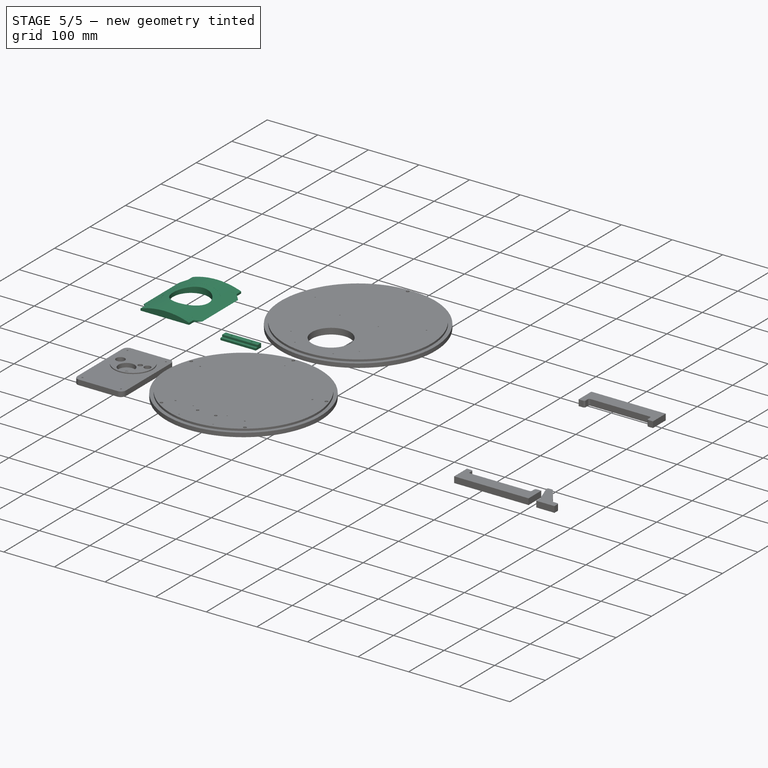
[diagram: stage 5 of 5 — iso view after this stage's code; geometry added in this stage tinted green]
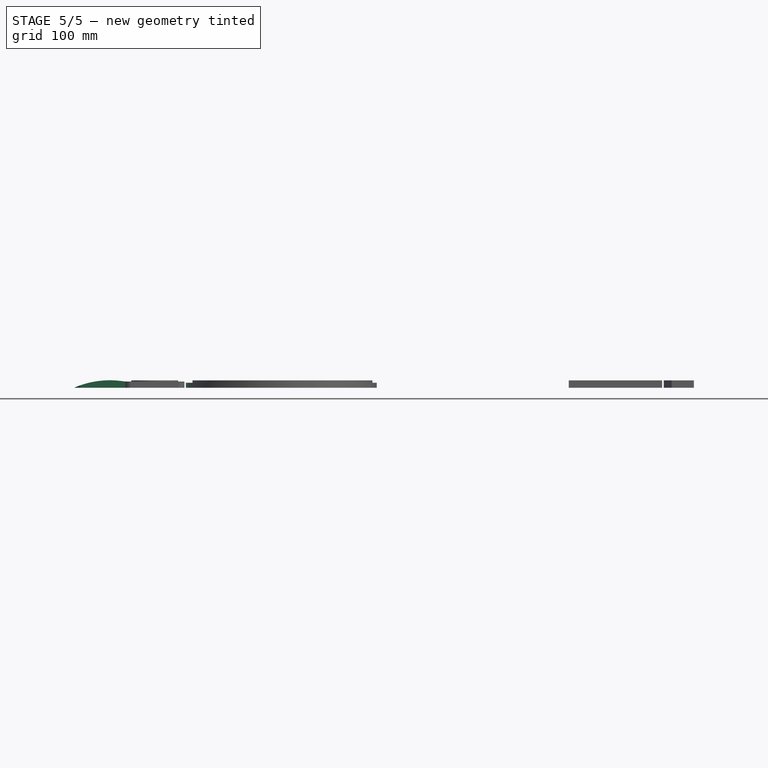
[diagram: stage 5 of 5 — front view after this stage's code; geometry added in this stage tinted green]
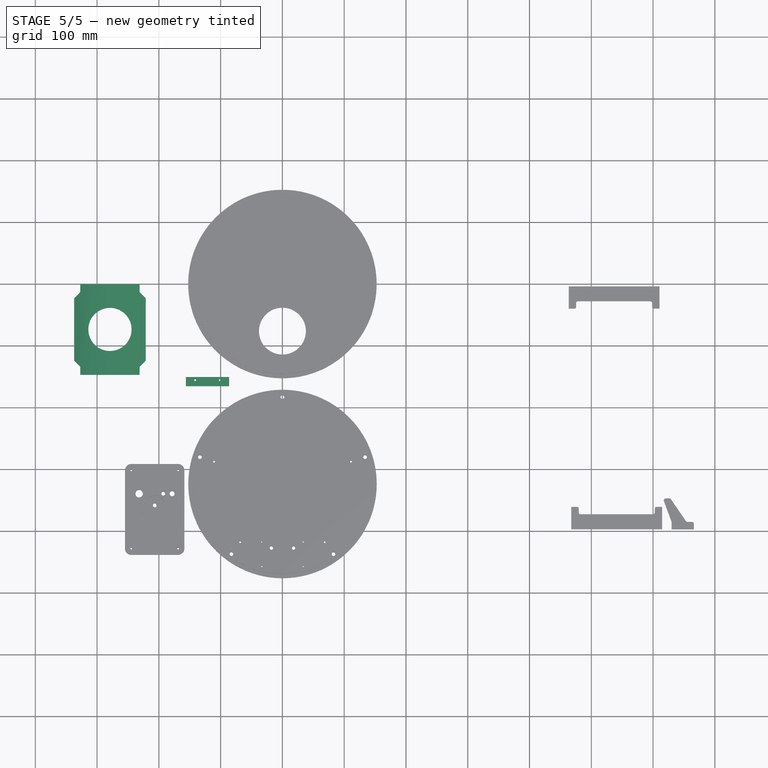
[diagram: stage 5 of 5 — top view after this stage's code; geometry added in this stage tinted green]
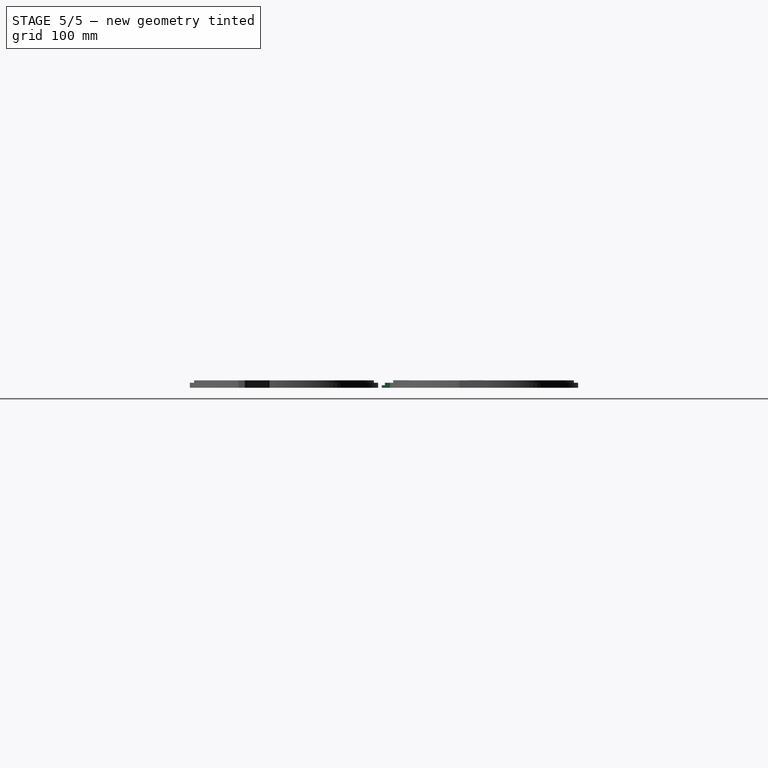
[diagram: stage 5 of 5 — right view after this stage's code; geometry added in this stage tinted green]
FEATURE [PartDesign::Body] Body004  label="Stand"
  Group = -> [Sketch014,Sketch024,Pad005,Fillet003]
  Origin = -> Origin004
  Placement = pos=(903.073,-310.126,0) rot=(0,0,1;0rad)
  Tip = -> Fillet003
FEATURE [Sketcher::SketchObject] Sketch015  label="master004"
  FullyConstrained = false
  MapMode = 5
  Support = -> [XY_Plane008]
  sketch-geometry (3):
    g0: Circle CenterX=0.142028 CenterY=-323.738 CenterZ=0 NormalX=0 NormalY=0 NormalZ=1 AngleXU=0 Radius=152.5
    g1: Circle CenterX=0.142028 CenterY=-323.738 CenterZ=0 NormalX=0 NormalY=0 NormalZ=1 AngleXU=0 Radius=146.5
    g2: Circle CenterX=76.25 CenterY=0 CenterZ=0 NormalX=0 NormalY=0 NormalZ=1 AngleXU=0 Radius=38
  constraints (5):
    c: Radius(g0) = 152.5  'Outer'
    c: Coincident(g1,g0)
    c: Radius(g1) = 146.5  'Inner'
    c: Radius(g2) = 38  'Cutout'
    c: DistanceX(g-1,g2) = 76.25
FEATURE [Sketcher::SketchObject] Sketch025
  ExternalGeometry = -> [Sketch015]
  FullyConstrained = true
  MapMode = 5
  Support = -> [XY_Plane008]
  sketch-geometry (1):
    g0: Circle CenterX=0.142028 CenterY=-323.738 CenterZ=0 NormalX=0 NormalY=0 NormalZ=1 AngleXU=0 Radius=152.5
  constraints (2):
    c: Coincident(g0,g-3)
    c: Tangent(g0,g-3)
FEATURE [Sketcher::SketchObject] Sketch027  label="master006"
  FullyConstrained = false
  MapMode = 5
  Placement = pos=(0,0,0) rot=(1,0,0;1.5708rad)
  Support = -> [XZ_Plane006]
  expr: Constraints[23] = .Constraints.tw_width
  expr: Constraints[12] = Sketch.Constraints.thickness
  expr: .Constraints.tw_width = 96
  expr: .Constraints.tw_height = Sketch008.Constraints.strut_height
  expr: Constraints[9] = <<master>>.Constraints.rad_inner
  sketch-geometry (10):
    g0: LineSegment StartX=-327.151 StartY=0 StartZ=0 EndX=-231.151 EndY=0 EndZ=0
    g1: ArcOfCircle CenterX=-279.151 CenterY=-133.5 CenterZ=0 NormalX=0 NormalY=0 NormalZ=1 AngleXU=0 Radius=145.5 StartAngle=1.2346 EndAngle=1.90699
    g2: LineSegment StartX=-279.151 StartY=-133.5 StartZ=0 EndX=-279.151 EndY=12 EndZ=0
    g3: LineSegment StartX=-327.151 StartY=3.85447 StartZ=0 EndX=-327.151 EndY=0 EndZ=0
    g4: LineSegment StartX=-231.151 StartY=3.85447 StartZ=0 EndX=-231.151 EndY=0 EndZ=0
    g5: LineSegment StartX=-334.763 StartY=-187.568 StartZ=0 EndX=-238.763 EndY=-187.568 EndZ=0
    g6: LineSegment StartX=-238.763 StartY=-187.568 StartZ=0 EndX=-238.763 EndY=-334.568 EndZ=0
    g7: LineSegment StartX=-238.763 StartY=-334.568 StartZ=0 EndX=-334.763 EndY=-334.568 EndZ=0
    g8: LineSegment StartX=-334.763 StartY=-334.568 StartZ=0 EndX=-334.763 EndY=-187.568 EndZ=0
    g9: Circle CenterX=-286.763 CenterY=-261.068 CenterZ=0 NormalX=0 NormalY=0 NormalZ=1 AngleXU=0 Radius=35
  constraints (26):
    c: Horizontal(g0)
    c: Coincident(g2,g1)
    c: PointOnObject(g2,g1)
    c: Coincident(g3,g1)
    c: Coincident(g3,g0)
    c: Coincident(g4,g1)
    c: Coincident(g4,g0)
    c: Perpendicular(g0,g3)
    c: Perpendicular(g0,g4)
    c: DistanceY(g2,g2) = 145.5
    c: Symmetric(g0,g0,g2)
    c: DistanceX(g0,g0) = 96  'tw_width'
    c: DistanceY(g0,g2) = 12
    c: PointOnObject(g0,g-1)
    c: Coincident(g5,g6)
    c: Coincident(g6,g7)
    c: Coincident(g7,g8)
    c: Coincident(g8,g5)
    c: Horizontal(g5)
    c: Horizontal(g7)
    c: Vertical(g6)
    c: Vertical(g8)
    c: DistanceY(g7,g5) = 147  'tw_height'
    c: DistanceX(g5,g5) = 96
    c: Symmetric(g5,g7,g9)
    c: Radius(g9) = 35  'tw_rad'
FEATURE [Sketcher::SketchObject] Sketch028
  ExternalGeometry = -> [Sketch027]
  FullyConstrained = true
  MapMode = 5
  Placement = pos=(0,0,0) rot=(1,0,0;1.5708rad)
  Support = -> [XZ_Plane006]
  expr: Constraints[12] = Sketch.Constraints.thickness
  expr: Constraints[11] = <<master>>.Constraints.rad_inner
  sketch-geometry (5):
    g0: LineSegment StartX=-327.151 StartY=0 StartZ=0 EndX=-231.151 EndY=0 EndZ=0
    g1: LineSegment StartX=-231.151 StartY=0 StartZ=0 EndX=-231.151 EndY=3.85447 EndZ=0
    g2: LineSegment StartX=-327.151 StartY=0 StartZ=0 EndX=-327.151 EndY=3.85447 EndZ=0
    g3: ArcOfCircle CenterX=-279.151 CenterY=-133.5 CenterZ=0 NormalX=0 NormalY=0 NormalZ=1 AngleXU=0 Radius=145.5 StartAngle=1.2346 EndAngle=1.90699
    g4: LineSegment StartX=-279.151 StartY=-133.5 StartZ=0 EndX=-279.151 EndY=12 EndZ=0
  constraints (13):
    c: Coincident(g0,g-3)
    c: Coincident(g0,g-3)
    c: Coincident(g1,g0)
    c: Coincident(g2,g0)
    c: Coincident(g3,g1)
    c: Coincident(g3,g2)
    c: Perpendicular(g0,g1)
    c: Perpendicular(g0,g2)
    c: Coincident(g4,g3)
    c: Symmetric(g0,g0,g4)
    c: PointOnObject(g4,g3)
    c: DistanceY(g4,g4) = 145.5
    c: DistanceY(g0,g4) = 12
FEATURE [PartDesign::Pad] Pad008
  Direction = (1,1,1)
  Length = 147
  Length2 = 100
  Placement = pos=(0,0,0) rot=(1,0,0;1.5708rad)
  Profile = -> Sketch028
  Type = 0
  expr: Length = <<master006>>.Constraints.tw_height
FEATURE [PartDesign::Plane] DatumPlane003
  Length = 401.373
  MapMode = 5
  Placement = pos=(0,0,0) rot=(1,0,0;3.14159rad)
  ResizeMode = 0
  Support = -> [Pad008]
  Width = 221.222
FEATURE [Sketcher::SketchObject] Sketch029  label="Cutout"
  ExternalGeometry = -> [Sketch027]
  FullyConstrained = true
  MapMode = 5
  Placement = pos=(0,0,0) rot=(1,0,0;3.14159rad)
  Support = -> [DatumPlane003]
  expr: Constraints[1] = <<master006>>.Constraints.tw_rad
  expr: Constraints[0] = <<master006>>.Constraints.tw_height / 2
  sketch-geometry (2):
    g0: Circle CenterX=-279.151 CenterY=73.5 CenterZ=0 NormalX=0 NormalY=0 NormalZ=1 AngleXU=0 Radius=35
    g1: LineSegment StartX=-279.151 StartY=73.5 StartZ=0 EndX=-279.151 EndY=0 EndZ=0
  constraints (5):
    c: DistanceY(g-1,g0) = 73.5
    c: Radius(g0) = 35
    c: Coincident(g1,g0)
    c: PointOnObject(g1,g-3)
    c: Symmetric(g-3,g-3,g1)
FEATURE [PartDesign::Pocket] Pocket004
  BaseFeature = -> Pad008
  Length = 5
  Length2 = 100
  Placement = pos=(0,0,0) rot=(1,0,0;1.5708rad)
  Profile = -> Sketch029
  Type = 1
FEATURE [Sketcher::SketchObject] Sketch033  label="master009"
  FullyConstrained = false
  MapMode = 5
  Placement = pos=(0,0,0) rot=(1,0,0;1.5708rad)
  Support = -> [XZ_Plane007]
  expr: .Constraints.tw_height = <<master002>>.Constraints.strut_height
  expr: Constraints[9] = <<master>>.Constraints.rad_inner
  expr: .Constraints.sub_width = 116
  expr: Constraints[12] = Sketch.Constraints.thickness
  expr: Constraints[23] = .Constraints.sub_width
  sketch-geometry (10):
    g0: LineSegment StartX=-337.151 StartY=0 StartZ=0 EndX=-221.151 EndY=0 EndZ=0
    g1: ArcOfCircle CenterX=-279.151 CenterY=-133.5 CenterZ=0 NormalX=0 NormalY=0 NormalZ=1 AngleXU=0 Radius=145.5 StartAngle=1.16078 EndAngle=1.98081
    g2: LineSegment StartX=-279.151 StartY=-133.5 StartZ=0 EndX=-279.151 EndY=12 EndZ=0
    g3: LineSegment StartX=-337.151 StartY=-0.0599385 StartZ=0 EndX=-337.151 EndY=0 EndZ=0
    g4: LineSegment StartX=-221.151 StartY=-0.0599385 StartZ=0 EndX=-221.151 EndY=0 EndZ=0
    g5: LineSegment StartX=-463.314 StartY=-186.582 StartZ=0 EndX=-347.314 EndY=-186.582 EndZ=0
    g6: LineSegment StartX=-347.314 StartY=-186.582 StartZ=0 EndX=-347.314 EndY=-333.582 EndZ=0
    g7: LineSegment StartX=-347.314 StartY=-333.582 StartZ=0 EndX=-463.314 EndY=-333.582 EndZ=0
    g8: LineSegment StartX=-463.314 StartY=-333.582 StartZ=0 EndX=-463.314 EndY=-186.582 EndZ=0
    g9: Circle CenterX=-405.314 CenterY=-260.082 CenterZ=0 NormalX=0 NormalY=0 NormalZ=1 AngleXU=0 Radius=48
  constraints (26):
    c: Horizontal(g0)
    c: Coincident(g2,g1)
    c: PointOnObject(g2,g1)
    c: Coincident(g3,g1)
    c: Coincident(g3,g0)
    c: Coincident(g4,g1)
    c: Coincident(g4,g0)
    c: Perpendicular(g0,g3)
    c: Perpendicular(g0,g4)
    c: DistanceY(g2,g2) = 145.5
    c: Symmetric(g0,g0,g2)
    c: DistanceX(g0,g0) = 116  'sub_width'
    c: DistanceY(g0,g2) = 12
    c: PointOnObject(g0,g-1)
    c: Coincident(g5,g6)
    c: Coincident(g6,g7)
    c: Coincident(g7,g8)
    c: Coincident(g8,g5)
    c: Horizontal(g5)
    c: Horizontal(g7)
    c: Vertical(g6)
    c: Vertical(g8)
    c: DistanceY(g7,g5) = 147  'tw_height'
    c: DistanceX(g5,g5) = 116
    c: Symmetric(g5,g7,g9)
    c: Radius(g9) = 48  'sub_rad'
FEATURE [Sketcher::SketchObject] Sketch032  label="Cutout001"
  ExternalGeometry = -> [Sketch033]
  FullyConstrained = true
  MapMode = 5
  Placement = pos=(0,0,0) rot=(1,0,0;3.14159rad)
  expr: Constraints[24] = .Constraints.edge
  expr: Constraints[23] = .Constraints.edge
  expr: Constraints[22] = .Constraints.edge
  expr: Constraints[0] = <<master009>>.Constraints.tw_height / 2
  expr: Constraints[12] = <<master010>>.Constraints.width
  expr: Constraints[1] = Sketch033.Constraints.sub_rad
  sketch-geometry (21):
    g0: Circle CenterX=-279.151 CenterY=73.5 CenterZ=0 NormalX=0 NormalY=0 NormalZ=1 AngleXU=0 Radius=48
    g1: LineSegment StartX=-279.151 StartY=73.5 StartZ=0 EndX=-279.151 EndY=0 EndZ=0
    g2: LineSegment StartX=-337.151 StartY=0 StartZ=0 EndX=-337.151 EndY=147 EndZ=0
    g3: LineSegment StartX=-221.151 StartY=0 StartZ=0 EndX=-221.151 EndY=147 EndZ=0
    g4: LineSegment StartX=-221.151 StartY=147 StartZ=0 EndX=-337.151 EndY=147 EndZ=0
    g5: LineSegment StartX=-314.151 StartY=147 StartZ=0 EndX=-337.151 EndY=124 EndZ=0
    g6: LineSegment StartX=-244.151 StartY=147 StartZ=0 EndX=-221.151 EndY=124 EndZ=0
    g7: LineSegment StartX=-337.151 StartY=23 StartZ=0 EndX=-314.151 EndY=0 EndZ=0
    g8: LineSegment StartX=-221.151 StartY=23 StartZ=0 EndX=-244.151 EndY=0 EndZ=0
    g9: LineSegment StartX=-337.151 StartY=124 StartZ=0 EndX=-221.151 EndY=124 EndZ=0
    g10: LineSegment StartX=-244.151 StartY=147 StartZ=0 EndX=-244.151 EndY=0 EndZ=0
    g11: LineSegment StartX=-221.151 StartY=23 StartZ=0 EndX=-337.151 EndY=23 EndZ=0
    g12: LineSegment StartX=-314.151 StartY=0 StartZ=0 EndX=-314.151 EndY=147 EndZ=0
    g13: LineSegment StartX=-337.151 StartY=124 StartZ=0 EndX=-337.151 EndY=147 EndZ=0
    g14: LineSegment StartX=-337.151 StartY=147 StartZ=0 EndX=-314.151 EndY=147 EndZ=0
    g15: LineSegment StartX=-244.151 StartY=147 StartZ=0 EndX=-221.151 EndY=147 EndZ=0
    g16: LineSegment StartX=-221.151 StartY=147 StartZ=0 EndX=-221.151 EndY=124 EndZ=0
    g17: LineSegment StartX=-221.151 StartY=23 StartZ=0 EndX=-221.151 EndY=0 EndZ=0
    g18: LineSegment StartX=-221.151 StartY=0 StartZ=0 EndX=-244.151 EndY=0 EndZ=0
    g19: LineSegment StartX=-314.151 StartY=0 StartZ=0 EndX=-337.151 EndY=0 EndZ=0
    g20: LineSegment StartX=-337.151 StartY=23 StartZ=0 EndX=-337.151 EndY=0 EndZ=0
  constraints (53):
    c: DistanceY(g-1,g0) = 73.5
    c: Radius(g0) = 48
    c: Coincident(g1,g0)
    c: PointOnObject(g1,g-3)
    c: Symmetric(g-3,g-3,g1)
    c: Coincident(g2,g-3)
    c: Vertical(g2)
    c: Coincident(g3,g-3)
    c: Vertical(g3)
    c: Coincident(g4,g3)
    c: Coincident(g4,g2)
    c: Horizontal(g4)
    c: DistanceY(g2,g2) = 147
    c: PointOnObject(g5,g4)
    c: PointOnObject(g5,g2)
    c: PointOnObject(g6,g4)
    c: PointOnObject(g6,g3)
    c: PointOnObject(g7,g2)
    c: PointOnObject(g7,g-3)
    c: PointOnObject(g8,g3)
    c: PointOnObject(g8,g-3)
    c: Angle(g5,g4) = 2.35619  'edge'
    c: Angle(g4,g6) = 2.35619
    c: Angle(g-3,g7) = 2.35619
    c: Angle(g8,g-3) = 2.35619
    c: Coincident(g9,g5)
    c: Coincident(g9,g6)
    c: Horizontal(g9)
    c: Coincident(g10,g6)
    c: Coincident(g10,g8)
    c: Vertical(g10)
    c: Coincident(g11,g8)
    c: Coincident(g11,g7)
    c: Horizontal(g11)
    c: Coincident(g12,g7)
    c: Coincident(g12,g5)
    c: DistanceX(g2,g5) = 23
    c: Coincident(g13,g5)
    c: Coincident(g13,g2)
    c: Coincident(g14,g13)
    c: Coincident(g14,g5)
    c: Coincident(g15,g6)
    c: Coincident(g15,g3)
    c: Coincident(g16,g15)
    c: Coincident(g16,g6)
    c: Coincident(g17,g8)
    c: Coincident(g17,g3)
    c: Coincident(g18,g17)
    c: Coincident(g18,g8)
    c: Coincident(g19,g7)
    c: Coincident(g19,g2)
    c: Coincident(g20,g7)
    c: Coincident(g20,g19)
FEATURE [Sketcher::SketchObject] Sketch034
  ExternalGeometry = -> [Sketch033]
  FullyConstrained = true
  MapMode = 5
  Placement = pos=(0,0,0) rot=(1,0,0;1.5708rad)
  Support = -> [XZ_Plane007]
  expr: Constraints[7] = <<master>>.Constraints.rad_inner
  sketch-geometry (3):
    g0: LineSegment StartX=-337.151 StartY=0 StartZ=0 EndX=-221.151 EndY=-2.70575e-11 EndZ=0
    g1: ArcOfCircle CenterX=-279.151 CenterY=-133.44 CenterZ=0 NormalX=0 NormalY=0 NormalZ=1 AngleXU=0 Radius=145.5 StartAngle=1.16078 EndAngle=1.98081
    g2: LineSegment StartX=-279.151 StartY=12.0599 StartZ=0 EndX=-279.151 EndY=-133.44 EndZ=0
  constraints (8):
    c: Coincident(g0,g-3)
    c: Coincident(g0,g-3)
    c: Coincident(g1,g0)
    c: Coincident(g1,g0)
    c: PointOnObject(g2,g1)
    c: Coincident(g2,g1)
    c: Symmetric(g0,g0,g2)
    c: DistanceY(g1,g2) = 145.5
FEATURE [PartDesign::Pad] Pad009
  Direction = (1,1,1)
  Length = 147
  Length2 = 100
  Placement = pos=(0,0,0) rot=(1,0,0;1.5708rad)
  Profile = -> Sketch034
  Type = 0
  expr: Length = Sketch008.Constraints.strut_height
FEATURE [PartDesign::Pocket] Pocket005
  BaseFeature = -> Pad009
  Length = 5
  Length2 = 100
  Placement = pos=(0,0,0) rot=(1,0,0;1.5708rad)
  Profile = -> Sketch032
  Type = 1
FEATURE [Sketcher::SketchObject] Sketch049
  ExternalGeometry = -> [Pocket004]
  FullyConstrained = true
  MapMode = 5
  Placement = pos=(0,0,0) rot=(1,0,0;3.14159rad)
  Support = -> [Pocket004]
  expr: Constraints[12] = <<predrill>>.Constraints.hole_dist
  expr: Constraints[13] = <<predrill>>.Constraints.hole_dist
  expr: Constraints[14] = <<predrill>>.Constraints.hole_dist
  expr: Constraints[15] = <<predrill>>.Constraints.hole_dist
  expr: Constraints[24] = <<predrill>>.Constraints.drill_rad
  sketch-geometry (8):
    g0: LineSegment StartX=-317.151 StartY=147 StartZ=0 EndX=-317.151 EndY=0 EndZ=0
    g1: LineSegment StartX=-241.151 StartY=147 StartZ=0 EndX=-241.151 EndY=0 EndZ=0
    g2: LineSegment StartX=-231.151 StartY=10 StartZ=0 EndX=-327.151 EndY=10 EndZ=0
    g3: LineSegment StartX=-231.151 StartY=137 StartZ=0 EndX=-327.151 EndY=137 EndZ=0
    g4: Circle CenterX=-317.151 CenterY=137 CenterZ=0 NormalX=0 NormalY=0 NormalZ=1 AngleXU=0 Radius=1.5
    g5: Circle CenterX=-241.151 CenterY=137 CenterZ=0 NormalX=0 NormalY=0 NormalZ=1 AngleXU=0 Radius=1.5
    g6: Circle CenterX=-317.151 CenterY=10 CenterZ=0 NormalX=0 NormalY=0 NormalZ=1 AngleXU=0 Radius=1.5
    g7: Circle CenterX=-241.151 CenterY=10 CenterZ=0 NormalX=0 NormalY=0 NormalZ=1 AngleXU=0 Radius=1.5
  constraints (28):
    c: PointOnObject(g0,g-3)
    c: PointOnObject(g0,g-6)
    c: Vertical(g0)
    c: PointOnObject(g1,g-3)
    c: PointOnObject(g1,g-6)
    c: Vertical(g1)
    c: PointOnObject(g2,g-5)
    c: PointOnObject(g2,g-4)
    c: Horizontal(g2)
    c: PointOnObject(g3,g-5)
    c: PointOnObject(g3,g-4)
    c: Horizontal(g3)
    c: DistanceX(g-4,g0) = 10
    c: DistanceX(g1,g-5) = 10
    c: DistanceY(g3,g-4) = 10
    c: DistanceY(g-6,g2) = 10
    c: PointOnObject(g6,g0)
    c: PointOnObject(g6,g2)
    c: PointOnObject(g7,g1)
    c: PointOnObject(g7,g2)
    c: PointOnObject(g4,g0)
    c: PointOnObject(g4,g3)
    c: PointOnObject(g5,g1)
    c: PointOnObject(g5,g3)
    c: Radius(g4) = 1.5
    c: Equal(g4,g5)
    c: Equal(g4,g7)
    c: Equal(g4,g6)
FEATURE [PartDesign::Pocket] Pocket013
  BaseFeature = -> Pocket004
  Length = 5
  Length2 = 100
  Placement = pos=(0,0,0) rot=(1,0,0;1.5708rad)
  Profile = -> Sketch049
  Type = 1
FEATURE [PartDesign::Body] Body006  label="Tweeter"
  Group = -> [Sketch027,Sketch028,Pad008,DatumPlane003,Sketch029,Pocket004,Sketch049,Pocket013]
  Origin = -> Origin006
  Placement = pos=(1031.7,2.70017,-3.94914) rot=(0,0,1;0rad)
  Tip = -> Pocket013
FEATURE [Sketcher::SketchObject] Sketch050
  ExternalGeometry = -> [Pocket005]
  FullyConstrained = true
  MapMode = 5
  Placement = pos=(0,0,-7.8642e-11) rot=(1,0,0;3.14159rad)
  Support = -> [Pocket005]
  expr: Constraints[0] = Sketch048.Constraints.drill_rad
  sketch-geometry (8):
    g0: Circle CenterX=-321.409 CenterY=131.257 CenterZ=0 NormalX=0 NormalY=0 NormalZ=1 AngleXU=0 Radius=1.5
    g1: Circle CenterX=-236.894 CenterY=15.7426 CenterZ=0 NormalX=0 NormalY=0 NormalZ=1 AngleXU=0 Radius=1.5
    g2: Circle CenterX=-321.409 CenterY=15.7426 CenterZ=0 NormalX=0 NormalY=0 NormalZ=1 AngleXU=0 Radius=1.5
    g3: Circle CenterX=-236.894 CenterY=131.257 CenterZ=0 NormalX=0 NormalY=0 NormalZ=1 AngleXU=0 Radius=1.5
    g4: LineSegment StartX=-325.651 StartY=135.5 StartZ=0 EndX=-321.409 EndY=131.257 EndZ=0
    g5: LineSegment StartX=-232.651 StartY=135.5 StartZ=0 EndX=-236.894 EndY=131.257 EndZ=0
    g6: LineSegment StartX=-232.651 StartY=11.5 StartZ=0 EndX=-236.894 EndY=15.7426 EndZ=0
    g7: LineSegment StartX=-325.651 StartY=11.5 StartZ=0 EndX=-321.409 EndY=15.7426 EndZ=0
  constraints (20):
    c: Radius(g0) = 1.5
    c: Equal(g0,g1)
    c: Equal(g0,g2)
    c: Equal(g0,g3)
    c: Perpendicular(g-3,g7)
    c: Perpendicular(g4,g-6)
    c: Perpendicular(g-5,g5)
    c: Perpendicular(g-4,g6)
    c: Symmetric(g-5,g-5,g5)
    c: Symmetric(g-6,g-6,g4)
    c: Symmetric(g-3,g-3,g7)
    c: Symmetric(g-4,g-4,g6)
    c: Coincident(g7,g2)
    c: Coincident(g0,g4)
    c: Coincident(g3,g5)
    c: Coincident(g1,g6)
    c: Distance(g4,g0) = 6
    c: Equal(g4,g5)
    c: Equal(g5,g7)
    c: Equal(g7,g6)
FEATURE [PartDesign::Pocket] Pocket014
  BaseFeature = -> Pocket005
  Length = 5
  Length2 = 100
  Placement = pos=(0,0,0) rot=(1,0,0;1.5708rad)
  Profile = -> Sketch050
  Type = 1
FEATURE [Sketcher::SketchObject] Sketch052
  FullyConstrained = false
  MapMode = 5
  Placement = pos=(0,0,12) rot=(0,0,1;0rad)
  expr: Constraints[37] = .Constraints.strut_fastener
  expr: Constraints[35] = .Constraints.strut_angle
  expr: Constraints[60] = <<predrill>>.Constraints.predrill_rad
  expr: Constraints[54] = <<predrill>>.Constraints.predrill_rad
  expr: Constraints[18] = .Constraints.strut_fastener
  expr: Constraints[34] = .Constraints.strut_angle
  expr: Constraints[36] = .Constraints.strut_angle
  expr: Constraints[38] = <<master011>>.Constraints.holder_length
  expr: Constraints[32] = .Constraints.locator
  expr: .Constraints.strut_angle = 360 / 5
  expr: Constraints[19] = .Constraints.strut_fastener
  expr: Constraints[47] = <<master011>>.Constraints.hole_dist
  expr: Constraints[59] = .Constraints.strut_fastener
  expr: Constraints[41] = .Constraints.batholder_holes
  expr: Constraints[46] = <<master011>>.Constraints.hole_dist
  expr: .Constraints.locator = 6
  expr: .Constraints.batholder_holes = 47 / 2 + 10
  expr: Constraints[8] = .Constraints.locator
  sketch-geometry (26):
    g0: LineSegment StartX=0.142028 StartY=-323.738 StartZ=0 EndX=139.472 EndY=-278.467 EndZ=0
    g1: LineSegment StartX=0.142028 StartY=-323.738 StartZ=0 EndX=86.2526 EndY=-442.259 EndZ=0
    g2: LineSegment StartX=0.142028 StartY=-323.738 StartZ=0 EndX=-85.9685 EndY=-442.259 EndZ=0
    g3: LineSegment StartX=0.142028 StartY=-323.738 StartZ=0 EndX=-139.188 EndY=-278.467 EndZ=0
    g4: Circle CenterX=0.142028 CenterY=-183.238 CenterZ=0 NormalX=0 NormalY=0 NormalZ=1 AngleXU=0 Radius=3
    g5: Circle CenterX=133.765 CenterY=-280.321 CenterZ=0 NormalX=0 NormalY=0 NormalZ=1 AngleXU=0 Radius=3
    g6: Circle CenterX=110.94 CenterY=-287.737 CenterZ=0 NormalX=0 NormalY=0 NormalZ=1 AngleXU=0 Radius=1.5
    g7: Circle CenterX=-133.481 CenterY=-280.321 CenterZ=0 NormalX=0 NormalY=0 NormalZ=1 AngleXU=0 Radius=3
    g8: Circle CenterX=-110.656 CenterY=-287.737 CenterZ=0 NormalX=0 NormalY=0 NormalZ=1 AngleXU=0 Radius=1.5
    g9: Circle CenterX=-82.4418 CenterY=-437.404 CenterZ=0 NormalX=0 NormalY=0 NormalZ=1 AngleXU=0 Radius=3
    g10: Circle CenterX=-68.335 CenterY=-417.988 CenterZ=0 NormalX=0 NormalY=0 NormalZ=1 AngleXU=0 Radius=1.5
    g11: Circle CenterX=82.7259 CenterY=-437.404 CenterZ=0 NormalX=0 NormalY=0 NormalZ=1 AngleXU=0 Radius=3
    g12: Circle CenterX=68.619 CenterY=-417.988 CenterZ=0 NormalX=0 NormalY=0 NormalZ=1 AngleXU=0 Radius=1.5
    g13: LineSegment StartX=0.142028 StartY=-177.238 StartZ=0 EndX=0.142028 EndY=-470.238 EndZ=0
    g14: LineSegment StartX=33.642 StartY=-402.513 StartZ=0 EndX=33.642 EndY=-472.513 EndZ=0
    g15: LineSegment StartX=-33.358 StartY=-402.513 StartZ=0 EndX=-33.358 EndY=-472.513 EndZ=0
    g16: Circle CenterX=-33.358 CenterY=-417.513 CenterZ=0 NormalX=0 NormalY=0 NormalZ=1 AngleXU=0 Radius=1
    g17: Circle CenterX=-33.358 CenterY=-457.513 CenterZ=0 NormalX=0 NormalY=0 NormalZ=1 AngleXU=0 Radius=1
    g18: Circle CenterX=33.642 CenterY=-457.513 CenterZ=0 NormalX=0 NormalY=0 NormalZ=1 AngleXU=0 Radius=1
    g19: Circle CenterX=33.642 CenterY=-417.513 CenterZ=0 NormalX=0 NormalY=0 NormalZ=1 AngleXU=0 Radius=1
    g20: LineSegment StartX=-33.358 StartY=-417.513 StartZ=0 EndX=33.642 EndY=-417.513 EndZ=0
    g21: LineSegment StartX=-33.358 StartY=-457.513 StartZ=0 EndX=33.642 EndY=-457.513 EndZ=0
    g22: Circle CenterX=0.142028 CenterY=-207.238 CenterZ=0 NormalX=0 NormalY=0 NormalZ=1 AngleXU=0 Radius=1
    g23: Circle CenterX=-17.858 CenterY=-427.513 CenterZ=0 NormalX=0 NormalY=0 NormalZ=1 AngleXU=0 Radius=2.75
    g24: Circle CenterX=18.142 CenterY=-427.513 CenterZ=0 NormalX=0 NormalY=0 NormalZ=1 AngleXU=0 Radius=2.75
    g25: LineSegment StartX=-33.358 StartY=-427.513 StartZ=0 EndX=33.642 EndY=-427.513 EndZ=0
  constraints (71):
    c: PointOnObject(g5,g0)
    c: PointOnObject(g6,g0)
    c: Distance(g5,g0) = 6
    c: PointOnObject(g7,g3)
    c: Distance(g7,g3) = 6  'locator'
    c: PointOnObject(g11,g1)
    c: Distance(g11,g1) = 6
    c: PointOnObject(g9,g2)
    c: Distance(g9,g2) = 6
    c: Radius(g7) = 3  'locator_rad'
    c: Equal(g7,g4)
    c: Equal(g7,g9)
    c: Equal(g7,g11)
    c: Equal(g7,g5)
    c: PointOnObject(g12,g1)
    c: PointOnObject(g10,g2)
    c: PointOnObject(g8,g3)
    c: Distance(g6,g0) = 30  'strut_fastener'
    c: Distance(g12,g1) = 30
    c: Distance(g10,g2) = 30
    c: Radius(g10) = 1.5
    c: Equal(g10,g12)
    c: Equal(g10,g6)
    c: Equal(g10,g8)
    c: Vertical(g13)
    c: PointOnObject(g4,g13)
    c: PointOnObject(g0,g13)
    c: Vertical(g14)
    c: Vertical(g15)
    c: Coincident(g0,g1)
    c: Coincident(g0,g2)
    c: Coincident(g0,g3)
    c: Distance(g4,g13) = 6
    c: Angle(g0,g13) = 1.25664  'strut_angle'
    c: Angle(g1,g0) = 1.25664
    c: Angle(g2,g1) = 1.25664
    c: Angle(g3,g2) = 1.25664
    c: Distance(g8,g3) = 30
    c: DistanceY(g15,g15) = 70
    c: Equal(g15,g14)
    c: DistanceX(g15,g0) = 33.5  'batholder_holes'
    c: DistanceX(g0,g14) = 33.5
    c: PointOnObject(g16,g15)
    c: PointOnObject(g17,g15)
    c: PointOnObject(g18,g14)
    c: PointOnObject(g19,g14)
    c: DistanceY(g16,g15) = 15
    c: DistanceY(g15,g17) = 15
    c: Coincident(g20,g16)
    c: Coincident(g20,g19)
    c: Horizontal(g20)
    c: Coincident(g21,g18)
    c: Horizontal(g21)
    c: Coincident(g21,g17)
    c: Radius(g19) = 1
    c: Equal(g19,g16)
    c: Equal(g19,g17)
    c: Equal(g19,g18)
    c: PointOnObject(g22,g13)
    c: DistanceY(g22,g13) = 30
    c: Radius(g22) = 1
    c: Diameter(g23) = 5.5
    c: Equal(g23,g24)
    c: PointOnObject(g25,g15)
    c: PointOnObject(g25,g14)
    c: Horizontal(g25)
    c: DistanceY(g14,g25) = 45  'pwr_connect'
    c: PointOnObject(g23,g25)
    c: PointOnObject(g24,g25)
    c: DistanceX(g23,g13) = 18
    c: DistanceX(g13,g24) = 18
FEATURE [Sketcher::SketchObject] Sketch053  label="master011"
  FullyConstrained = false
  MapMode = 5
  Placement = pos=(0,0,0) rot=(1,0,0;1.5708rad)
  Support = -> [XZ_Plane014]
  expr: Constraints[22] = <<predrill>>.Constraints.drill_rad
  expr: Constraints[21] = .Constraints.hole_dist
  expr: .Constraints.hole_dist = 1.5 * <<predrill>>.Constraints.hole_dist
  sketch-geometry (8):
    g0: LineSegment StartX=-175.991 StartY=-6.09863 StartZ=0 EndX=-190.991 EndY=-6.09863 EndZ=0
    g1: LineSegment StartX=-190.991 StartY=-6.09863 StartZ=0 EndX=-190.991 EndY=-76.0986 EndZ=0
    g2: LineSegment StartX=-190.991 StartY=-76.0986 StartZ=0 EndX=-175.991 EndY=-76.0986 EndZ=0
    g3: LineSegment StartX=-175.991 StartY=-76.0986 StartZ=0 EndX=-175.991 EndY=-6.09863 EndZ=0
    g4: LineSegment StartX=-185.991 StartY=-6.09863 StartZ=0 EndX=-185.991 EndY=-76.0986 EndZ=0
    g5: LineSegment StartX=-180.991 StartY=-6.09863 StartZ=0 EndX=-180.991 EndY=-76.0986 EndZ=0
    g6: Circle CenterX=-180.991 CenterY=-21.0986 CenterZ=0 NormalX=0 NormalY=0 NormalZ=1 AngleXU=0 Radius=1.5
    g7: Circle CenterX=-180.991 CenterY=-61.0986 CenterZ=0 NormalX=0 NormalY=0 NormalZ=1 AngleXU=0 Radius=1.5
  constraints (24):
    c: Coincident(g0,g1)
    c: Coincident(g1,g2)
    c: Coincident(g2,g3)
    c: Coincident(g3,g0)
    c: Horizontal(g0)
    c: Horizontal(g2)
    c: Vertical(g1)
    c: Vertical(g3)
    c: DistanceX(g0,g0) = 15
    c: DistanceY(g1,g0) = 70  'holder_length'
    c: PointOnObject(g4,g0)
    c: PointOnObject(g4,g2)
    c: Vertical(g4)
    c: PointOnObject(g5,g0)
    c: PointOnObject(g5,g2)
    c: Vertical(g5)
    c: DistanceX(g0,g4) = 5
    c: DistanceX(g0,g5) = 10
    c: PointOnObject(g6,g5)
    c: PointOnObject(g7,g5)
    c: DistanceY(g6,g5) = 15  'hole_dist'
    c: DistanceY(g5,g7) = 15
    c: Radius(g6) = 1.5
    c: Equal(g6,g7)
FEATURE [PartDesign::Body] Body014  label="BatHolderR"
  Group = -> [Sketch045,Pad013,Sketch051,Pocket015,Sketch053]
  Origin = -> Origin014
  Placement = pos=(90.2198,-397.275,0) rot=(0,0,1;3.14159rad)
  Tip = -> Pocket015
FEATURE [PartDesign::FeatureBase] Clone005
  BaseFeature = -> Body014
  Placement = pos=(-156.297,24.7697,0) rot=(0,0,1;1.5708rad)
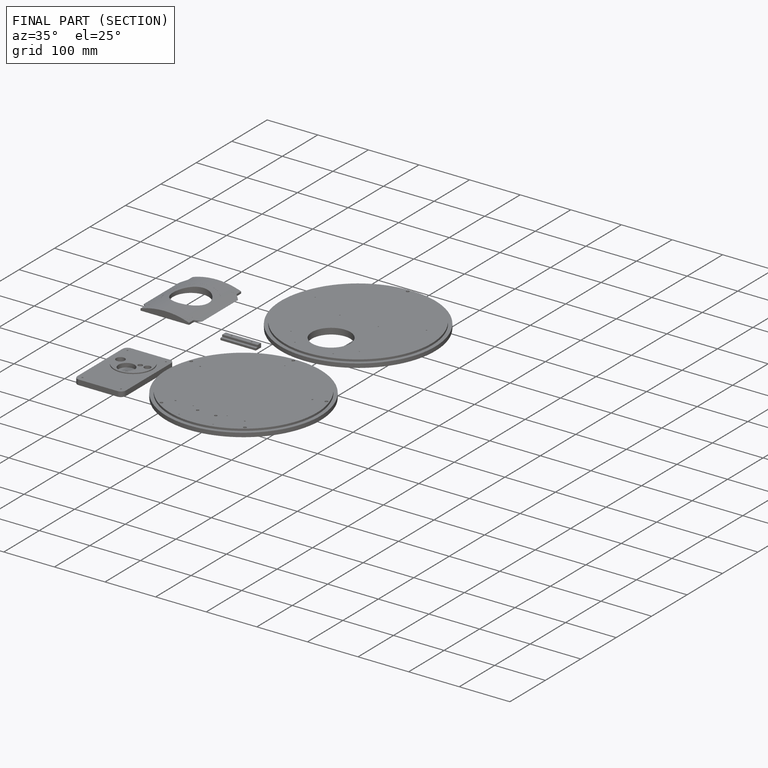
[diagram: finished part — half-section view (interior)]
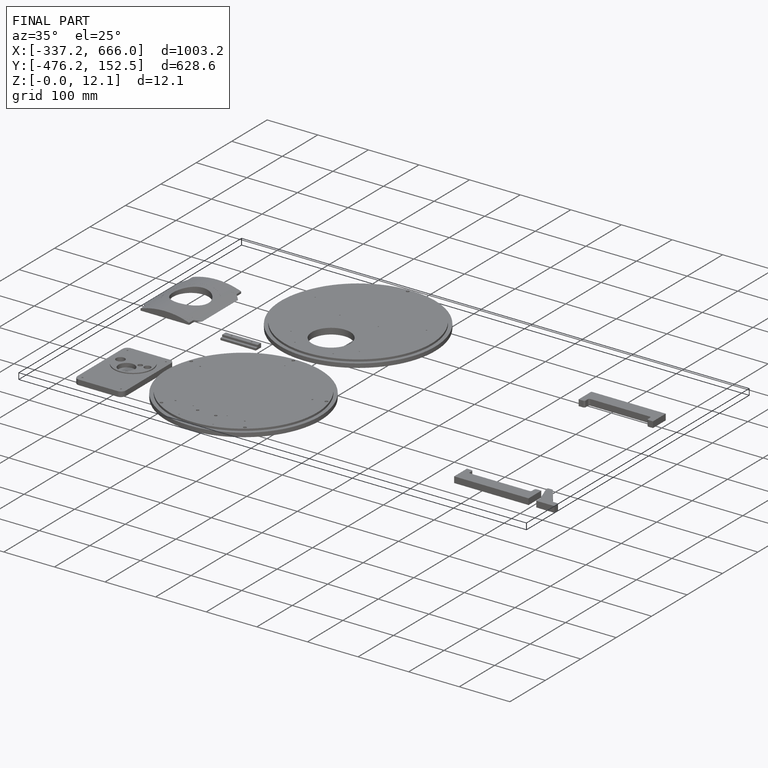
[diagram: finished part — iso view with bounding-box wireframe]
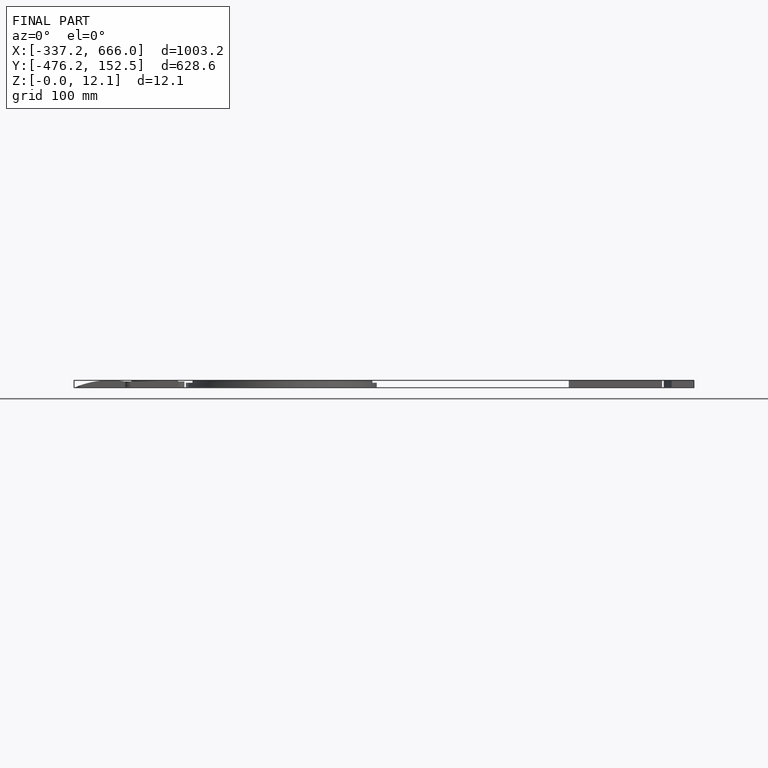
[diagram: finished part — front view with bounding-box wireframe]
